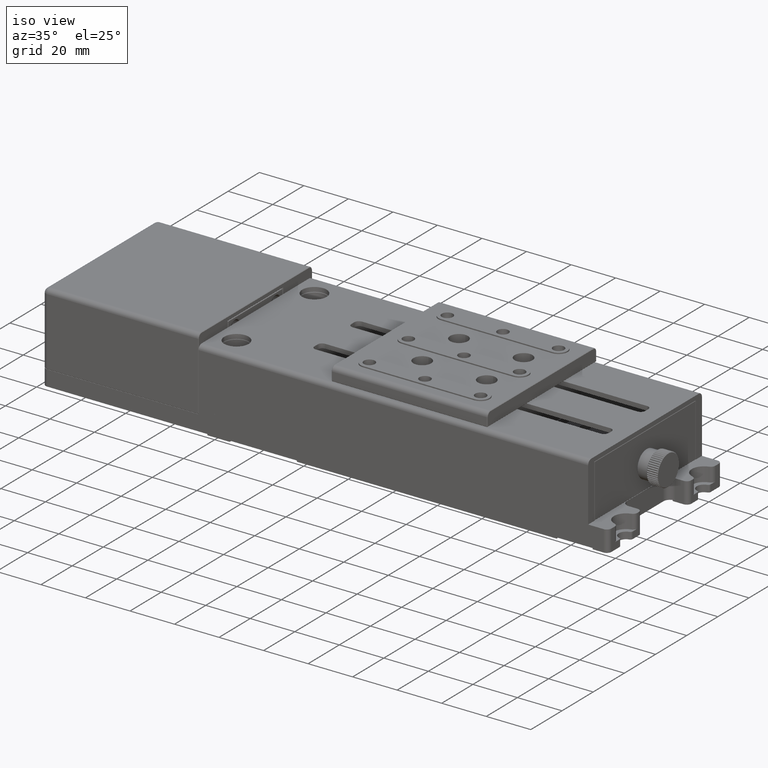
[diagram: clean part render]
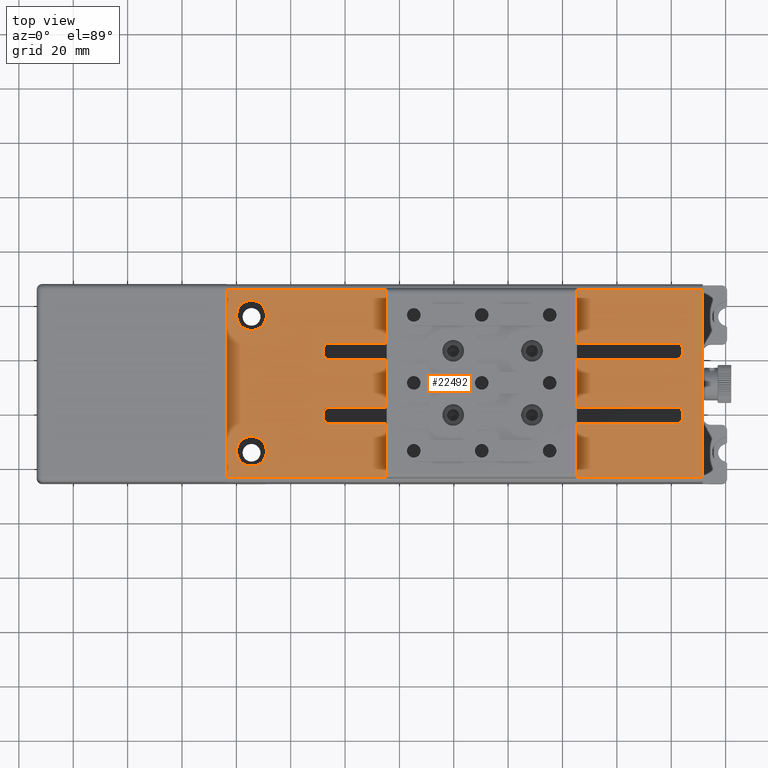
[diagram: tour spotlight — one face highlighted and labeled with its STEP entity id]
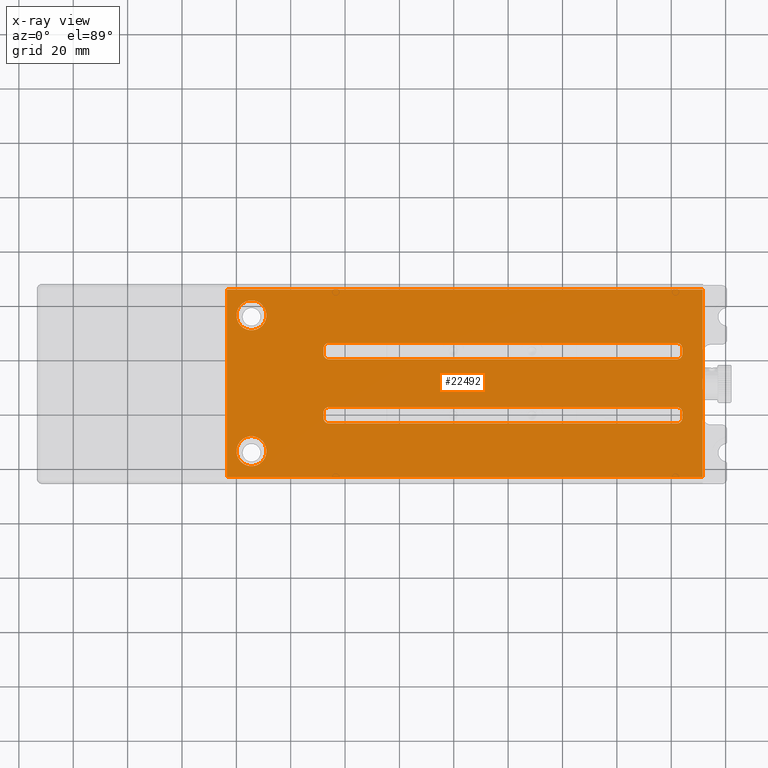
[diagram: x-ray of the same camera — body ghosted, this tour face saturated]
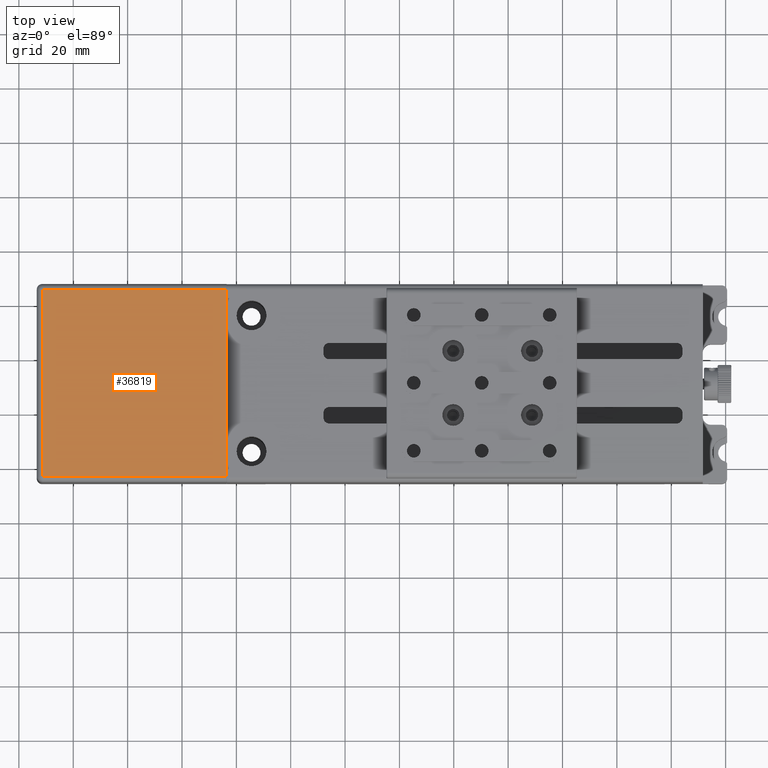
[diagram: tour spotlight — one face highlighted and labeled with its STEP entity id]
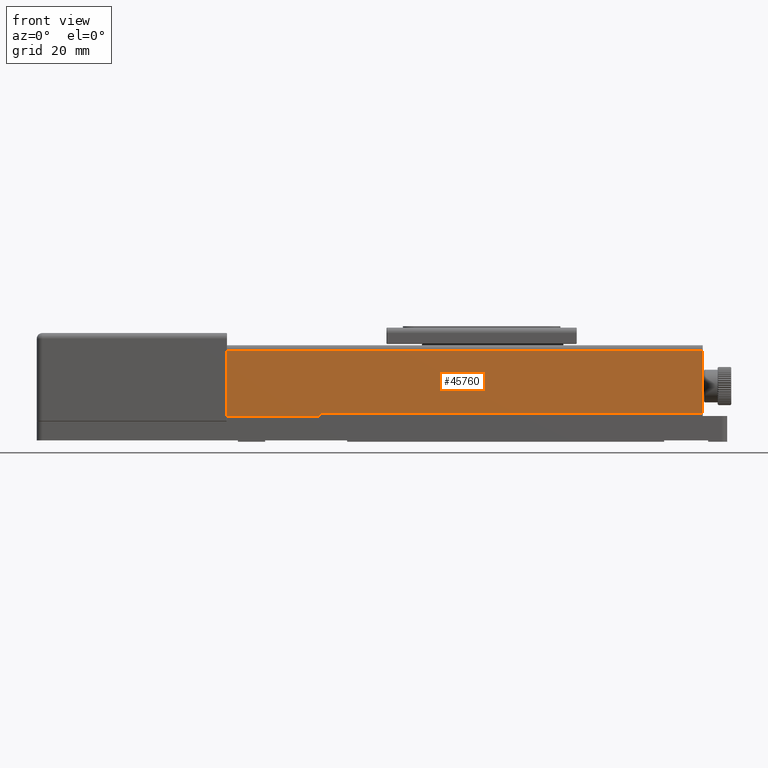
[diagram: tour spotlight — one face highlighted and labeled with its STEP entity id]
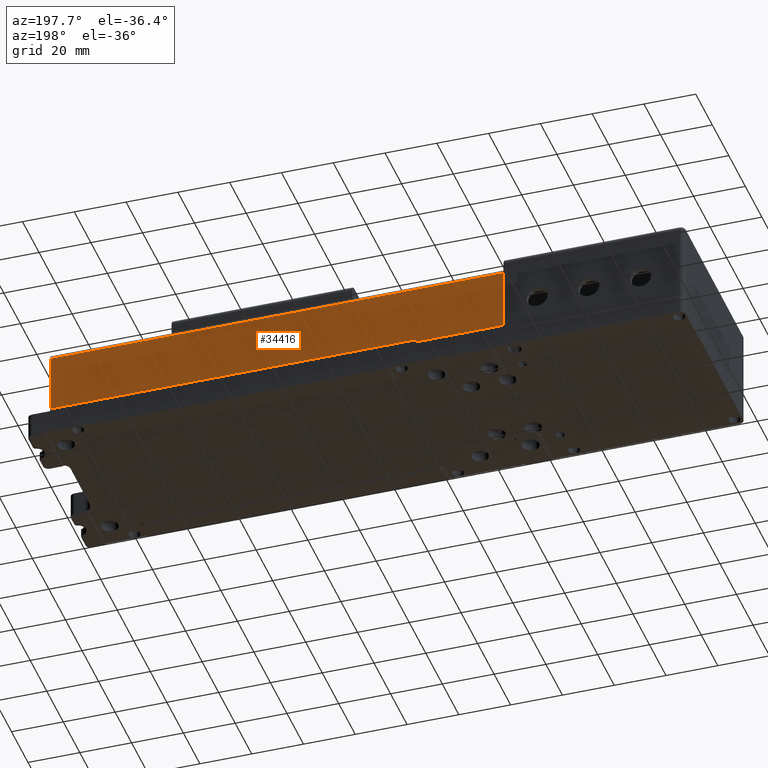
[diagram: tour spotlight — one face highlighted and labeled with its STEP entity id]
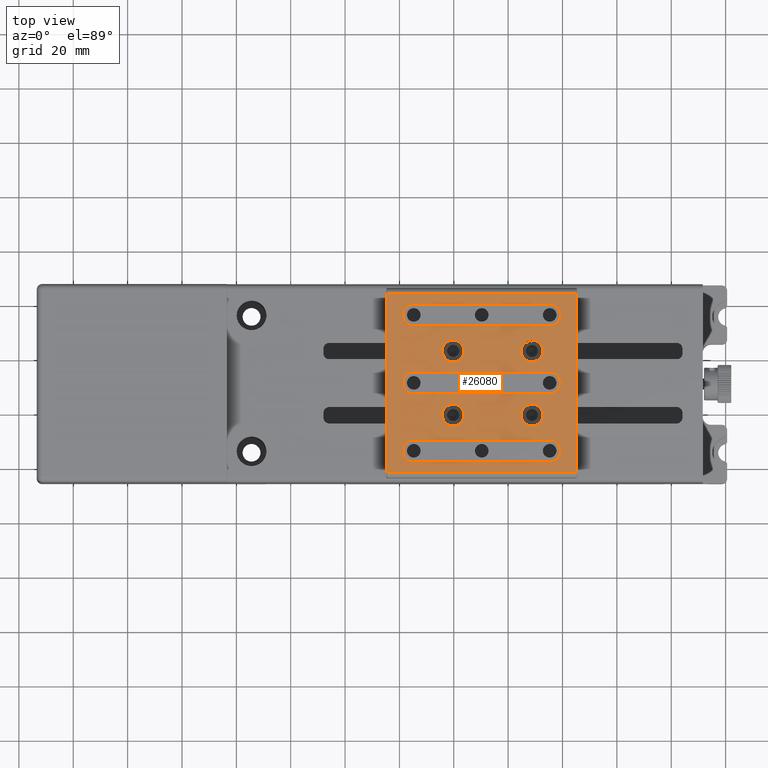
[diagram: tour spotlight — one face highlighted and labeled with its STEP entity id]
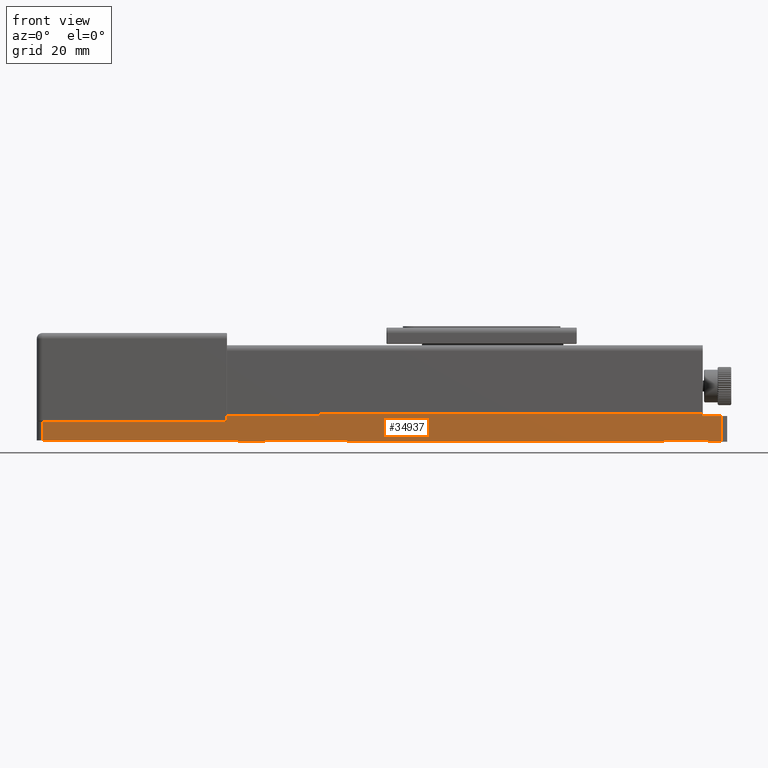
[diagram: tour spotlight — one face highlighted and labeled with its STEP entity id]
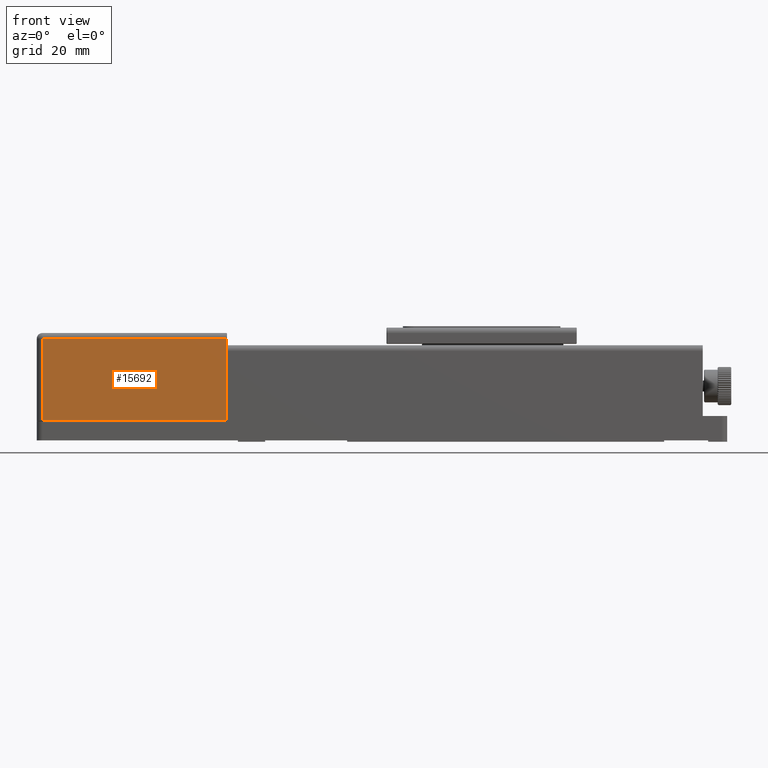
[diagram: tour spotlight — one face highlighted and labeled with its STEP entity id]
A machine part: a face-by-face anatomy tour. The part has 2313 B-rep faces; the first image is the clean iso view, then the 7 largest visible faces are spotlighted one at a time (largest first), each with its STEP entity span.

Face 1 — top view, entity #22492. An x-ray twin of the same camera follows (body ghosted, this face saturated) — the face is partly hidden behind the body. In plain terms, the highlighted planar face has unit normal (0, 0, -1).
Definition (entity closure, byte-faithful):
#330 = CIRCLE ( 'NONE', #14767, 5.500000000000005329 ) ;
#639 = VERTEX_POINT ( 'NONE', #30970 ) ;
#992 = FACE_BOUND ( 'NONE', #18426, .T. ) ;
#1371 = CARTESIAN_POINT ( 'NONE',  ( 91.57474001859759483, -43.46919745025279980, 30.00000000000000000 ) ) ;
#1963 = DIRECTION ( 'NONE',  ( -1.000000000000000000, 2.168404344971006896E-16, 0.000000000000000000 ) ) ;
#2164 = EDGE_CURVE ( 'NONE', #56288, #31745, #48360, .T. ) ;
#2575 = DIRECTION ( 'NONE',  ( -1.000000000000000000, 1.169098488052247876E-16, 0.000000000000000000 ) ) ;
#3082 = VERTEX_POINT ( 'NONE', #3318 ) ;
#3161 = ORIENTED_EDGE ( 'NONE', *, *, #56345, .F. ) ;
#3318 = CARTESIAN_POINT ( 'NONE',  ( 82.07474001859769430, -17.76919745025280051, 30.00000000000000000 ) ) ;
#3456 = DIRECTION ( 'NONE',  ( -1.110223024625155924E-16, -1.000000000000000000, 0.000000000000000000 ) ) ;
#4019 = LINE ( 'NONE', #9240, #28297 ) ;
#4138 = ORIENTED_EDGE ( 'NONE', *, *, #9456, .T. ) ;
#4188 = EDGE_LOOP ( 'NONE', ( #67688, #29185, #3161, #41574 ) ) ;
#4339 = VECTOR ( 'NONE', #3456, 1000.000000000000000 ) ;
#4471 = VERTEX_POINT ( 'NONE', #56346 ) ;
#4508 = DIRECTION ( 'NONE',  ( 1.000000000000000000, 0.000000000000000000, 0.000000000000000000 ) ) ;
#4823 = ORIENTED_EDGE ( 'NONE', *, *, #39870, .F. ) ;
#5096 = VECTOR ( 'NONE', #38648, 1000.000000000000000 ) ;
#5485 = EDGE_CURVE ( 'NONE', #39274, #26899, #53823, .T. ) ;
#5807 = VERTEX_POINT ( 'NONE', #26141 ) ;
#5845 = EDGE_CURVE ( 'NONE', #19783, #61576, #58288, .T. ) ;
#6032 = VECTOR ( 'NONE', #40745, 1000.000000000000000 ) ;
#6382 = VERTEX_POINT ( 'NONE', #48915 ) ;
#6396 = CIRCLE ( 'NONE', #45192, 2.000000000000001776 ) ;
#6403 = EDGE_CURVE ( 'NONE', #44530, #4471, #33648, .T. ) ;
#6417 = LINE ( 'NONE', #33143, #56610 ) ;
#6533 = CARTESIAN_POINT ( 'NONE',  ( -74.42525998140239096, 16.03080254974724994, 30.00000000000000000 ) ) ;
#6975 = DIRECTION ( 'NONE',  ( -1.000000000000000000, 2.168404344971006896E-16, 0.000000000000000000 ) ) ;
#7548 = DIRECTION ( 'NONE',  ( -1.000000000000000000, 0.000000000000000000, 0.000000000000000000 ) ) ;
#7603 = AXIS2_PLACEMENT_3D ( 'NONE', #53744, #31918, #58619 ) ;
#7691 = VERTEX_POINT ( 'NONE', #58289 ) ;
#8015 = VERTEX_POINT ( 'NONE', #62032 ) ;
#8448 = EDGE_CURVE ( 'NONE', #8015, #66848, #66754, .T. ) ;
#9240 = CARTESIAN_POINT ( 'NONE',  ( 84.07474001859770851, -0.1691974502527995028, 30.00000000000000000 ) ) ;
#9456 = EDGE_CURVE ( 'NONE', #5807, #6382, #67719, .T. ) ;
#10108 = VECTOR ( 'NONE', #33102, 1000.000000000000000 ) ;
#10593 = AXIS2_PLACEMENT_3D ( 'NONE', #64110, #26976, #54374 ) ;
#10854 = ORIENTED_EDGE ( 'NONE', *, *, #20792, .T. ) ;
#11081 = CIRCLE ( 'NONE', #55409, 2.000000000000001776 ) ;
#11403 = CARTESIAN_POINT ( 'NONE',  ( -45.92525998140230570, 1.830802549747215124, 30.00000000000000000 ) ) ;
#11421 = VERTEX_POINT ( 'NONE', #14254 ) ;
#11731 = CIRCLE ( 'NONE', #18368, 5.500000000000005329 ) ;
#11745 = DIRECTION ( 'NONE',  ( 0.000000000000000000, 0.000000000000000000, 1.000000000000000000 ) ) ;
#11927 = AXIS2_PLACEMENT_3D ( 'NONE', #32396, #26519, #47661 ) ;
#13203 = CARTESIAN_POINT ( 'NONE',  ( -47.92525998140230570, -0.1691974502527860136, 30.00000000000000000 ) ) ;
#14179 = VERTEX_POINT ( 'NONE', #25817 ) ;
#14254 = CARTESIAN_POINT ( 'NONE',  ( -47.92525998140230570, 1.830802549747215124, 30.00000000000000000 ) ) ;
#14767 = AXIS2_PLACEMENT_3D ( 'NONE', #6533, #11745, #32913 ) ;
#15095 = ORIENTED_EDGE ( 'NONE', *, *, #43003, .T. ) ;
#15262 = DIRECTION ( 'NONE',  ( 1.000000000000000000, 0.000000000000000000, 0.000000000000000000 ) ) ;
#15624 = PLANE ( 'NONE',  #7603 ) ;
#16404 = CARTESIAN_POINT ( 'NONE',  ( -47.92525998140230570, -19.76919745025280406, 30.00000000000000000 ) ) ;
#17426 = CARTESIAN_POINT ( 'NONE',  ( -79.92525998140240517, 16.03080254974724994, 30.00000000000000000 ) ) ;
#17500 = CARTESIAN_POINT ( 'NONE',  ( 84.07474001859770851, -0.1691974502527995028, 30.00000000000000000 ) ) ;
#17772 = CIRCLE ( 'NONE', #58727, 5.500000000000005329 ) ;
#18368 = AXIS2_PLACEMENT_3D ( 'NONE', #25000, #30896, #4508 ) ;
#18426 = EDGE_LOOP ( 'NONE', ( #46575, #30313 ) ) ;
#18981 = DIRECTION ( 'NONE',  ( -3.353798720221824995E-17, 1.000000000000000000, 0.000000000000000000 ) ) ;
#19156 = CARTESIAN_POINT ( 'NONE',  ( -74.42525998140239096, 16.03080254974724994, 30.00000000000000000 ) ) ;
#19606 = ORIENTED_EDGE ( 'NONE', *, *, #5845, .T. ) ;
#19783 = VERTEX_POINT ( 'NONE', #67055 ) ;
#19941 = LINE ( 'NONE', #29671, #6032 ) ;
#20792 = EDGE_CURVE ( 'NONE', #44361, #7691, #58425, .T. ) ;
#22013 = ORIENTED_EDGE ( 'NONE', *, *, #45916, .F. ) ;
#22261 = DIRECTION ( 'NONE',  ( 0.000000000000000000, 0.000000000000000000, -1.000000000000000000 ) ) ;
#22492 = ADVANCED_FACE ( 'NONE', ( #68017, #37105, #47855, #992, #38123 ), #15624, .F. ) ;
#23377 = CARTESIAN_POINT ( 'NONE',  ( 84.07474001859770851, -23.76919745025280051, 30.00000000000000000 ) ) ;
#23378 = AXIS2_PLACEMENT_3D ( 'NONE', #33205, #49489, #1963 ) ;
#24102 = CIRCLE ( 'NONE', #52897, 5.500000000000005329 ) ;
#24407 = EDGE_CURVE ( 'NONE', #47893, #29905, #330, .T. ) ;
#24792 = ORIENTED_EDGE ( 'NONE', *, *, #41115, .F. ) ;
#25000 = CARTESIAN_POINT ( 'NONE',  ( -74.42525998140239096, -33.96919745025275006, 30.00000000000000000 ) ) ;
#25090 = LINE ( 'NONE', #57337, #60827 ) ;
#25610 = EDGE_CURVE ( 'NONE', #46324, #31745, #29323, .T. ) ;
#25675 = DIRECTION ( 'NONE',  ( 0.000000000000000000, 0.000000000000000000, 1.000000000000000000 ) ) ;
#25777 = DIRECTION ( 'NONE',  ( -1.000000000000000000, 2.220446049250315053E-16, 0.000000000000000000 ) ) ;
#25817 = CARTESIAN_POINT ( 'NONE',  ( 84.07474001859770851, -19.76919745025280406, 30.00000000000000000 ) ) ;
#26141 = CARTESIAN_POINT ( 'NONE',  ( -47.92525998140230570, 3.830802549747220009, 30.00000000000000000 ) ) ;
#26322 = CARTESIAN_POINT ( 'NONE',  ( -47.92525998140230570, -23.76919745025280051, 30.00000000000000000 ) ) ;
#26445 = EDGE_LOOP ( 'NONE', ( #49291, #58625 ) ) ;
#26519 = DIRECTION ( 'NONE',  ( 0.000000000000000000, 0.000000000000000000, -1.000000000000000000 ) ) ;
#26899 = VERTEX_POINT ( 'NONE', #38635 ) ;
#26976 = DIRECTION ( 'NONE',  ( 0.000000000000000000, 0.000000000000000000, -1.000000000000000000 ) ) ;
#27199 = LINE ( 'NONE', #23377, #10108 ) ;
#27674 = CARTESIAN_POINT ( 'NONE',  ( 82.07474001859769430, -19.76919745025280406, 30.00000000000000000 ) ) ;
#27724 = EDGE_CURVE ( 'NONE', #59582, #49720, #11731, .T. ) ;
#27856 = ORIENTED_EDGE ( 'NONE', *, *, #35106, .F. ) ;
#28297 = VECTOR ( 'NONE', #18981, 1000.000000000000000 ) ;
#28363 = AXIS2_PLACEMENT_3D ( 'NONE', #36887, #47630, #52496 ) ;
#29166 = CARTESIAN_POINT ( 'NONE',  ( 82.07474001859769430, 1.830802549747205132, 30.00000000000000000 ) ) ;
#29185 = ORIENTED_EDGE ( 'NONE', *, *, #6403, .T. ) ;
#29323 = CIRCLE ( 'NONE', #48120, 2.000000000000001776 ) ;
#29505 = VECTOR ( 'NONE', #67632, 1000.000000000000000 ) ;
#29671 = CARTESIAN_POINT ( 'NONE',  ( 84.07474001859770851, 5.830802549747209795, 30.00000000000000000 ) ) ;
#29806 = ORIENTED_EDGE ( 'NONE', *, *, #55060, .T. ) ;
#29905 = VERTEX_POINT ( 'NONE', #17426 ) ;
#30293 = DIRECTION ( 'NONE',  ( 1.110223024625155924E-16, 1.000000000000000000, 0.000000000000000000 ) ) ;
#30313 = ORIENTED_EDGE ( 'NONE', *, *, #62283, .F. ) ;
#30359 = CARTESIAN_POINT ( 'NONE',  ( 84.07474001859770851, 1.830802549747200025, 30.00000000000000000 ) ) ;
#30533 = CARTESIAN_POINT ( 'NONE',  ( -74.42525998140239096, -33.96919745025275006, 30.00000000000000000 ) ) ;
#30896 = DIRECTION ( 'NONE',  ( 0.000000000000000000, 0.000000000000000000, 1.000000000000000000 ) ) ;
#30970 = CARTESIAN_POINT ( 'NONE',  ( 84.07474001859770851, 3.830802549747204910, 30.00000000000000000 ) ) ;
#31671 = CARTESIAN_POINT ( 'NONE',  ( -83.42525998140240517, 25.53080254974725349, 30.00000000000000000 ) ) ;
#31711 = CIRCLE ( 'NONE', #40575, 2.000000000000001776 ) ;
#31745 = VERTEX_POINT ( 'NONE', #59819 ) ;
#31918 = DIRECTION ( 'NONE',  ( 0.000000000000000000, 0.000000000000000000, -1.000000000000000000 ) ) ;
#32396 = CARTESIAN_POINT ( 'NONE',  ( -45.92525998140230570, -21.76919745025279695, 30.00000000000000000 ) ) ;
#32574 = EDGE_LOOP ( 'NONE', ( #55966, #38609, #4823, #44988, #49154, #15095, #22013, #4138 ) ) ;
#32613 = ORIENTED_EDGE ( 'NONE', *, *, #68590, .F. ) ;
#32913 = DIRECTION ( 'NONE',  ( 1.000000000000000000, 0.000000000000000000, 0.000000000000000000 ) ) ;
#33102 = DIRECTION ( 'NONE',  ( 1.000000000000000000, -1.169098488052247876E-16, 0.000000000000000000 ) ) ;
#33143 = CARTESIAN_POINT ( 'NONE',  ( 84.07474001859770851, -23.76919745025280051, 30.00000000000000000 ) ) ;
#33205 = CARTESIAN_POINT ( 'NONE',  ( -45.92525998140230570, 3.830802549747220009, 30.00000000000000000 ) ) ;
#33397 = DIRECTION ( 'NONE',  ( 0.000000000000000000, 0.000000000000000000, -1.000000000000000000 ) ) ;
#33648 = LINE ( 'NONE', #1371, #40657 ) ;
#33911 = DIRECTION ( 'NONE',  ( 0.000000000000000000, 0.000000000000000000, -1.000000000000000000 ) ) ;
#34112 = CARTESIAN_POINT ( 'NONE',  ( -68.92525998140229149, -33.96919745025275006, 30.00000000000000000 ) ) ;
#34356 = LINE ( 'NONE', #13203, #4339 ) ;
#34562 = EDGE_CURVE ( 'NONE', #59173, #639, #11081, .T. ) ;
#34642 = EDGE_CURVE ( 'NONE', #29905, #47893, #17772, .T. ) ;
#35106 = EDGE_CURVE ( 'NONE', #19783, #14179, #6417, .T. ) ;
#35230 = VECTOR ( 'NONE', #2575, 1000.000000000000000 ) ;
#36887 = CARTESIAN_POINT ( 'NONE',  ( 82.07474001859769430, -21.76919745025279695, 30.00000000000000000 ) ) ;
#37105 = FACE_BOUND ( 'NONE', #32574, .T. ) ;
#38123 = FACE_OUTER_BOUND ( 'NONE', #4188, .T. ) ;
#38609 = ORIENTED_EDGE ( 'NONE', *, *, #34562, .T. ) ;
#38635 = CARTESIAN_POINT ( 'NONE',  ( -45.92525998140230570, -17.76919745025280051, 30.00000000000000000 ) ) ;
#38648 = DIRECTION ( 'NONE',  ( 1.000000000000000000, -9.062615977527318217E-17, 0.000000000000000000 ) ) ;
#38850 = DIRECTION ( 'NONE',  ( 1.000000000000000000, -2.220446049250315053E-16, 0.000000000000000000 ) ) ;
#39274 = VERTEX_POINT ( 'NONE', #16404 ) ;
#39616 = DIRECTION ( 'NONE',  ( -1.000000000000000000, 2.168404344971006896E-16, 0.000000000000000000 ) ) ;
#39870 = EDGE_CURVE ( 'NONE', #46324, #639, #4019, .T. ) ;
#40061 = CARTESIAN_POINT ( 'NONE',  ( 84.07474001859770851, -17.76919745025280051, 30.00000000000000000 ) ) ;
#40300 = DIRECTION ( 'NONE',  ( 0.000000000000000000, 0.000000000000000000, 1.000000000000000000 ) ) ;
#40575 = AXIS2_PLACEMENT_3D ( 'NONE', #27674, #33911, #7548 ) ;
#40657 = VECTOR ( 'NONE', #38850, 1000.000000000000000 ) ;
#40745 = DIRECTION ( 'NONE',  ( -1.000000000000000000, 9.062615977527318217E-17, 0.000000000000000000 ) ) ;
#41115 = EDGE_CURVE ( 'NONE', #39274, #7691, #61736, .T. ) ;
#41574 = ORIENTED_EDGE ( 'NONE', *, *, #8448, .T. ) ;
#42367 = VECTOR ( 'NONE', #66197, 1000.000000000000000 ) ;
#43003 = EDGE_CURVE ( 'NONE', #56288, #11421, #6396, .T. ) ;
#43668 = CARTESIAN_POINT ( 'NONE',  ( -45.92525998140230570, -23.76919745025280051, 30.00000000000000000 ) ) ;
#44361 = VERTEX_POINT ( 'NONE', #43668 ) ;
#44530 = VERTEX_POINT ( 'NONE', #50585 ) ;
#44988 = ORIENTED_EDGE ( 'NONE', *, *, #25610, .T. ) ;
#45191 = EDGE_CURVE ( 'NONE', #44361, #61576, #27199, .T. ) ;
#45192 = AXIS2_PLACEMENT_3D ( 'NONE', #11403, #57916, #53042 ) ;
#45916 = EDGE_CURVE ( 'NONE', #5807, #11421, #34356, .T. ) ;
#46324 = VERTEX_POINT ( 'NONE', #30359 ) ;
#46488 = ORIENTED_EDGE ( 'NONE', *, *, #5485, .T. ) ;
#46517 = DIRECTION ( 'NONE',  ( 1.000000000000000000, 0.000000000000000000, 0.000000000000000000 ) ) ;
#46575 = ORIENTED_EDGE ( 'NONE', *, *, #27724, .F. ) ;
#47630 = DIRECTION ( 'NONE',  ( 0.000000000000000000, 0.000000000000000000, -1.000000000000000000 ) ) ;
#47661 = DIRECTION ( 'NONE',  ( -1.000000000000000000, 0.000000000000000000, 0.000000000000000000 ) ) ;
#47855 = FACE_BOUND ( 'NONE', #26445, .T. ) ;
#47893 = VERTEX_POINT ( 'NONE', #66482 ) ;
#48120 = AXIS2_PLACEMENT_3D ( 'NONE', #29166, #22261, #6975 ) ;
#48360 = LINE ( 'NONE', #17500, #5096 ) ;
#48399 = DIRECTION ( 'NONE',  ( 2.555825921272494964E-16, 1.000000000000000000, 0.000000000000000000 ) ) ;
#48842 = CARTESIAN_POINT ( 'NONE',  ( -45.92525998140230570, -0.1691974502527860136, 30.00000000000000000 ) ) ;
#48915 = CARTESIAN_POINT ( 'NONE',  ( -45.92525998140230570, 5.830802549747220453, 30.00000000000000000 ) ) ;
#49154 = ORIENTED_EDGE ( 'NONE', *, *, #2164, .F. ) ;
#49291 = ORIENTED_EDGE ( 'NONE', *, *, #24407, .F. ) ;
#49489 = DIRECTION ( 'NONE',  ( 0.000000000000000000, 0.000000000000000000, -1.000000000000000000 ) ) ;
#49720 = VERTEX_POINT ( 'NONE', #54804 ) ;
#50015 = CARTESIAN_POINT ( 'NONE',  ( 82.07474001859769430, 3.830802549747209795, 30.00000000000000000 ) ) ;
#50585 = CARTESIAN_POINT ( 'NONE',  ( -83.42525998140240517, -43.46919745025275006, 30.00000000000000000 ) ) ;
#52496 = DIRECTION ( 'NONE',  ( -1.000000000000000000, 0.000000000000000000, 0.000000000000000000 ) ) ;
#52897 = AXIS2_PLACEMENT_3D ( 'NONE', #30533, #25675, #15262 ) ;
#53042 = DIRECTION ( 'NONE',  ( -1.000000000000000000, 2.168404344971006896E-16, 0.000000000000000000 ) ) ;
#53744 = CARTESIAN_POINT ( 'NONE',  ( 91.57474001859770851, 27.53080254974720020, 30.00000000000000000 ) ) ;
#53823 = CIRCLE ( 'NONE', #10593, 2.000000000000001776 ) ;
#54374 = DIRECTION ( 'NONE',  ( -1.000000000000000000, 0.000000000000000000, 0.000000000000000000 ) ) ;
#54804 = CARTESIAN_POINT ( 'NONE',  ( -79.92525998140240517, -33.96919745025275006, 30.00000000000000000 ) ) ;
#55060 = EDGE_CURVE ( 'NONE', #3082, #14179, #31711, .T. ) ;
#55409 = AXIS2_PLACEMENT_3D ( 'NONE', #50015, #33397, #39616 ) ;
#55966 = ORIENTED_EDGE ( 'NONE', *, *, #58268, .F. ) ;
#56288 = VERTEX_POINT ( 'NONE', #48842 ) ;
#56345 = EDGE_CURVE ( 'NONE', #8015, #4471, #67563, .T. ) ;
#56346 = CARTESIAN_POINT ( 'NONE',  ( 91.57474001859759483, -43.46919745025279980, 30.00000000000000000 ) ) ;
#56610 = VECTOR ( 'NONE', #48399, 1000.000000000000000 ) ;
#56998 = CARTESIAN_POINT ( 'NONE',  ( 91.57474001859770851, 25.53080254974720020, 30.00000000000000000 ) ) ;
#57337 = CARTESIAN_POINT ( 'NONE',  ( -83.42525998140240517, 27.53080254974724994, 30.00000000000000000 ) ) ;
#57545 = VECTOR ( 'NONE', #25777, 1000.000000000000000 ) ;
#57916 = DIRECTION ( 'NONE',  ( 0.000000000000000000, 0.000000000000000000, -1.000000000000000000 ) ) ;
#58268 = EDGE_CURVE ( 'NONE', #59173, #6382, #19941, .T. ) ;
#58288 = CIRCLE ( 'NONE', #28363, 2.000000000000001776 ) ;
#58289 = CARTESIAN_POINT ( 'NONE',  ( -47.92525998140230570, -21.76919745025279695, 30.00000000000000000 ) ) ;
#58425 = CIRCLE ( 'NONE', #11927, 2.000000000000001776 ) ;
#58619 = DIRECTION ( 'NONE',  ( 0.000000000000000000, -1.000000000000000000, 0.000000000000000000 ) ) ;
#58625 = ORIENTED_EDGE ( 'NONE', *, *, #34642, .F. ) ;
#58727 = AXIS2_PLACEMENT_3D ( 'NONE', #19156, #40300, #46517 ) ;
#59173 = VERTEX_POINT ( 'NONE', #60200 ) ;
#59582 = VERTEX_POINT ( 'NONE', #34112 ) ;
#59819 = CARTESIAN_POINT ( 'NONE',  ( 82.07474001859769430, -0.1691974502527960056, 30.00000000000000000 ) ) ;
#60200 = CARTESIAN_POINT ( 'NONE',  ( 82.07474001859769430, 5.830802549747209795, 30.00000000000000000 ) ) ;
#60827 = VECTOR ( 'NONE', #30293, 1000.000000000000000 ) ;
#60880 = LINE ( 'NONE', #40061, #35230 ) ;
#61576 = VERTEX_POINT ( 'NONE', #67907 ) ;
#61736 = LINE ( 'NONE', #26322, #29505 ) ;
#62000 = CARTESIAN_POINT ( 'NONE',  ( 91.57474001859770851, 27.53080254974720020, 30.00000000000000000 ) ) ;
#62032 = CARTESIAN_POINT ( 'NONE',  ( 91.57474001859770851, 25.53080254974720020, 30.00000000000000000 ) ) ;
#62283 = EDGE_CURVE ( 'NONE', #49720, #59582, #24102, .T. ) ;
#63462 = EDGE_CURVE ( 'NONE', #44530, #66848, #25090, .T. ) ;
#64110 = CARTESIAN_POINT ( 'NONE',  ( -45.92525998140230570, -19.76919745025280406, 30.00000000000000000 ) ) ;
#66197 = DIRECTION ( 'NONE',  ( -2.334869823772509994E-16, -1.000000000000000000, 0.000000000000000000 ) ) ;
#66482 = CARTESIAN_POINT ( 'NONE',  ( -68.92525998140229149, 16.03080254974724994, 30.00000000000000000 ) ) ;
#66754 = LINE ( 'NONE', #56998, #57545 ) ;
#66848 = VERTEX_POINT ( 'NONE', #31671 ) ;
#67055 = CARTESIAN_POINT ( 'NONE',  ( 84.07474001859770851, -21.76919745025279695, 30.00000000000000000 ) ) ;
#67563 = LINE ( 'NONE', #62000, #42367 ) ;
#67632 = DIRECTION ( 'NONE',  ( -1.110223024625155924E-16, -1.000000000000000000, 0.000000000000000000 ) ) ;
#67688 = ORIENTED_EDGE ( 'NONE', *, *, #63462, .F. ) ;
#67719 = CIRCLE ( 'NONE', #23378, 2.000000000000001776 ) ;
#67907 = CARTESIAN_POINT ( 'NONE',  ( 82.07474001859769430, -23.76919745025280051, 30.00000000000000000 ) ) ;
#68017 = FACE_BOUND ( 'NONE', #68338, .T. ) ;
#68212 = ORIENTED_EDGE ( 'NONE', *, *, #45191, .F. ) ;
#68338 = EDGE_LOOP ( 'NONE', ( #32613, #29806, #27856, #19606, #68212, #10854, #24792, #46488 ) ) ;
#68590 = EDGE_CURVE ( 'NONE', #3082, #26899, #60880, .T. ) ;

Face 2 — top view, entity #36819. In plain terms, the highlighted planar face has unit normal (0, 0, -1).
Definition (entity closure, byte-faithful):
#1306 = CARTESIAN_POINT ( 'NONE',  ( -151.4252599814024904, -45.46919745025279980, 34.50000000000000000 ) ) ;
#4978 = LINE ( 'NONE', #26158, #14975 ) ;
#5989 = DIRECTION ( 'NONE',  ( 0.000000000000000000, 0.000000000000000000, -1.000000000000000000 ) ) ;
#6349 = FACE_OUTER_BOUND ( 'NONE', #11153, .T. ) ;
#6918 = AXIS2_PLACEMENT_3D ( 'NONE', #58068, #5989, #31705 ) ;
#11153 = EDGE_LOOP ( 'NONE', ( #52039, #24619, #46108, #26987 ) ) ;
#11355 = CARTESIAN_POINT ( 'NONE',  ( -83.62525998140229433, -43.46919745025279980, 34.50000000000000000 ) ) ;
#14975 = VECTOR ( 'NONE', #54145, 1000.000000000000000 ) ;
#17971 = LINE ( 'NONE', #1306, #33501 ) ;
#23448 = LINE ( 'NONE', #45633, #42787 ) ;
#24619 = ORIENTED_EDGE ( 'NONE', *, *, #26712, .T. ) ;
#26158 = CARTESIAN_POINT ( 'NONE',  ( -83.42525998140230570, 25.53080254974720020, 34.50000000000000000 ) ) ;
#26712 = EDGE_CURVE ( 'NONE', #33007, #63881, #23448, .T. ) ;
#26987 = ORIENTED_EDGE ( 'NONE', *, *, #56327, .T. ) ;
#31705 = DIRECTION ( 'NONE',  ( 0.000000000000000000, -1.000000000000000000, 0.000000000000000000 ) ) ;
#33007 = VERTEX_POINT ( 'NONE', #11355 ) ;
#33501 = VECTOR ( 'NONE', #64820, 1000.000000000000000 ) ;
#34111 = LINE ( 'NONE', #51420, #50953 ) ;
#36819 = ADVANCED_FACE ( 'NONE', ( #6349 ), #47982, .F. ) ;
#42787 = VECTOR ( 'NONE', #61245, 1000.000000000000000 ) ;
#45633 = CARTESIAN_POINT ( 'NONE',  ( -83.62525998140229433, -45.46919745025279980, 34.50000000000000000 ) ) ;
#46108 = ORIENTED_EDGE ( 'NONE', *, *, #58419, .T. ) ;
#46702 = EDGE_CURVE ( 'NONE', #51623, #33007, #34111, .T. ) ;
#47982 = PLANE ( 'NONE',  #6918 ) ;
#50953 = VECTOR ( 'NONE', #56298, 1000.000000000000000 ) ;
#51420 = CARTESIAN_POINT ( 'NONE',  ( -83.42525998140240517, -43.46919745025279980, 34.50000000000000000 ) ) ;
#51623 = VERTEX_POINT ( 'NONE', #65084 ) ;
#52039 = ORIENTED_EDGE ( 'NONE', *, *, #46702, .T. ) ;
#54145 = DIRECTION ( 'NONE',  ( -1.000000000000000000, 2.220446049250315053E-16, 0.000000000000000000 ) ) ;
#56298 = DIRECTION ( 'NONE',  ( 1.000000000000000000, -3.445092848397665055E-16, 0.000000000000000000 ) ) ;
#56327 = EDGE_CURVE ( 'NONE', #65218, #51623, #17971, .T. ) ;
#57515 = CARTESIAN_POINT ( 'NONE',  ( -83.62525998140229433, 25.53080254974720020, 34.50000000000000000 ) ) ;
#58068 = CARTESIAN_POINT ( 'NONE',  ( -83.42525998140240517, -45.46919745025279980, 34.50000000000000000 ) ) ;
#58419 = EDGE_CURVE ( 'NONE', #63881, #65218, #4978, .T. ) ;
#61245 = DIRECTION ( 'NONE',  ( 2.775557561562890365E-16, 1.000000000000000000, 0.000000000000000000 ) ) ;
#62985 = CARTESIAN_POINT ( 'NONE',  ( -151.4252599814024904, 25.53080254974725349, 34.50000000000000000 ) ) ;
#63881 = VERTEX_POINT ( 'NONE', #57515 ) ;
#64820 = DIRECTION ( 'NONE',  ( -2.775557561562890365E-16, -1.000000000000000000, 0.000000000000000000 ) ) ;
#65084 = CARTESIAN_POINT ( 'NONE',  ( -151.4252599814024904, -43.46919745025275006, 34.50000000000000000 ) ) ;
#65218 = VERTEX_POINT ( 'NONE', #62985 ) ;

Face 3 — front view, entity #45760. In plain terms, the highlighted planar face has unit normal (0, 1, 0).
Definition (entity closure, byte-faithful):
#1043 = DIRECTION ( 'NONE',  ( 1.000000000000000000, -1.110223024625155924E-16, 0.000000000000000000 ) ) ;
#2677 = VERTEX_POINT ( 'NONE', #14848 ) ;
#5910 = DIRECTION ( 'NONE',  ( 1.110223024625155924E-16, 1.000000000000000000, 0.000000000000000000 ) ) ;
#6611 = FACE_OUTER_BOUND ( 'NONE', #32474, .T. ) ;
#10160 = VECTOR ( 'NONE', #36902, 1000.000000000000000 ) ;
#13158 = ORIENTED_EDGE ( 'NONE', *, *, #56318, .F. ) ;
#14195 = EDGE_CURVE ( 'NONE', #31085, #25713, #62255, .T. ) ;
#14848 = CARTESIAN_POINT ( 'NONE',  ( -83.42525998140240517, -45.46919745025279980, 28.00000000000000000 ) ) ;
#16866 = VECTOR ( 'NONE', #33581, 1000.000000000000000 ) ;
#21594 = LINE ( 'NONE', #32668, #66371 ) ;
#22098 = EDGE_CURVE ( 'NONE', #56760, #2677, #21594, .T. ) ;
#22291 = ORIENTED_EDGE ( 'NONE', *, *, #14195, .F. ) ;
#22414 = VECTOR ( 'NONE', #49169, 1000.000000000000000 ) ;
#23176 = CARTESIAN_POINT ( 'NONE',  ( 91.57474001859759483, -45.46919745025279980, 5.000000000000000000 ) ) ;
#25713 = VERTEX_POINT ( 'NONE', #45120 ) ;
#28873 = VECTOR ( 'NONE', #31397, 1000.000000000000000 ) ;
#28884 = LINE ( 'NONE', #44834, #45784 ) ;
#30732 = CARTESIAN_POINT ( 'NONE',  ( 91.57474001859759483, -45.46919745025279980, 5.000000000000000000 ) ) ;
#30743 = ORIENTED_EDGE ( 'NONE', *, *, #50103, .F. ) ;
#31085 = VERTEX_POINT ( 'NONE', #40956 ) ;
#31397 = DIRECTION ( 'NONE',  ( 0.000000000000000000, 0.000000000000000000, 1.000000000000000000 ) ) ;
#32474 = EDGE_LOOP ( 'NONE', ( #22291, #52142, #13158, #50708, #40021, #30743 ) ) ;
#32668 = CARTESIAN_POINT ( 'NONE',  ( 91.57474001859759483, -45.46919745025279980, 28.00000000000000000 ) ) ;
#33581 = DIRECTION ( 'NONE',  ( -1.000000000000000000, 2.220446049250315053E-16, 0.000000000000000000 ) ) ;
#35354 = AXIS2_PLACEMENT_3D ( 'NONE', #49263, #5910, #1043 ) ;
#35534 = VERTEX_POINT ( 'NONE', #64291 ) ;
#36902 = DIRECTION ( 'NONE',  ( -1.000000000000000000, 2.220446049250315053E-16, 0.000000000000000000 ) ) ;
#38080 = VERTEX_POINT ( 'NONE', #50835 ) ;
#39732 = CARTESIAN_POINT ( 'NONE',  ( 91.57474001859759483, -45.46919745025279980, 28.00000000000000000 ) ) ;
#40021 = ORIENTED_EDGE ( 'NONE', *, *, #22098, .T. ) ;
#40956 = CARTESIAN_POINT ( 'NONE',  ( -49.42525998140229859, -45.46919745025279980, 4.000000000000000000 ) ) ;
#41772 = CARTESIAN_POINT ( 'NONE',  ( 91.57474001859759483, -45.46919745025279980, 4.000000000000000000 ) ) ;
#43649 = LINE ( 'NONE', #23176, #16866 ) ;
#44834 = CARTESIAN_POINT ( 'NONE',  ( -49.42525998140229859, -45.46919745025279980, 2.000000000000000000 ) ) ;
#45120 = CARTESIAN_POINT ( 'NONE',  ( -83.42525998140240517, -45.46919745025279980, 4.000000000000000000 ) ) ;
#45760 = ADVANCED_FACE ( 'NONE', ( #6611 ), #47902, .F. ) ;
#45784 = VECTOR ( 'NONE', #66016, 1000.000000000000000 ) ;
#47902 = PLANE ( 'NONE',  #35354 ) ;
#48969 = DIRECTION ( 'NONE',  ( -1.000000000000000000, 2.220446049250315053E-16, 0.000000000000000000 ) ) ;
#49169 = DIRECTION ( 'NONE',  ( 0.000000000000000000, 0.000000000000000000, 1.000000000000000000 ) ) ;
#49263 = CARTESIAN_POINT ( 'NONE',  ( 91.57474001859759483, -45.46919745025279980, 5.000000000000000000 ) ) ;
#50103 = EDGE_CURVE ( 'NONE', #25713, #2677, #59938, .T. ) ;
#50708 = ORIENTED_EDGE ( 'NONE', *, *, #65188, .T. ) ;
#50835 = CARTESIAN_POINT ( 'NONE',  ( -49.42525998140229859, -45.46919745025279980, 5.000000000000000000 ) ) ;
#51107 = EDGE_CURVE ( 'NONE', #31085, #38080, #28884, .T. ) ;
#52142 = ORIENTED_EDGE ( 'NONE', *, *, #51107, .T. ) ;
#56318 = EDGE_CURVE ( 'NONE', #35534, #38080, #43649, .T. ) ;
#56760 = VERTEX_POINT ( 'NONE', #39732 ) ;
#59938 = LINE ( 'NONE', #65837, #22414 ) ;
#62255 = LINE ( 'NONE', #41772, #10160 ) ;
#64291 = CARTESIAN_POINT ( 'NONE',  ( 91.57474001859759483, -45.46919745025279980, 5.000000000000000000 ) ) ;
#65188 = EDGE_CURVE ( 'NONE', #35534, #56760, #67171, .T. ) ;
#65837 = CARTESIAN_POINT ( 'NONE',  ( -83.42525998140240517, -45.46919745025279980, 5.000000000000000000 ) ) ;
#66016 = DIRECTION ( 'NONE',  ( 0.000000000000000000, 0.000000000000000000, 1.000000000000000000 ) ) ;
#66371 = VECTOR ( 'NONE', #48969, 1000.000000000000000 ) ;
#67171 = LINE ( 'NONE', #30732, #28873 ) ;

Face 4 — auxiliary view, entity #34416. In plain terms, the highlighted planar face has unit normal (-0, -1, 0).
Definition (entity closure, byte-faithful):
#1832 = DIRECTION ( 'NONE',  ( 0.000000000000000000, 0.000000000000000000, 1.000000000000000000 ) ) ;
#2289 = ORIENTED_EDGE ( 'NONE', *, *, #26564, .F. ) ;
#2461 = CARTESIAN_POINT ( 'NONE',  ( 91.57474001859770851, 27.53080254974720020, 28.00000000000000000 ) ) ;
#3492 = VECTOR ( 'NONE', #62110, 1000.000000000000000 ) ;
#4036 = CARTESIAN_POINT ( 'NONE',  ( -49.42525998140229859, 27.53080254974724994, 5.000000000000000000 ) ) ;
#4515 = CARTESIAN_POINT ( 'NONE',  ( 91.57474001859770851, 27.53080254974720020, 28.00000000000000000 ) ) ;
#6283 = CARTESIAN_POINT ( 'NONE',  ( -83.42525998140240517, 27.53080254974724994, 28.00000000000000000 ) ) ;
#6602 = LINE ( 'NONE', #22571, #62706 ) ;
#6699 = CARTESIAN_POINT ( 'NONE',  ( -49.42525998140229859, 27.53080254974724994, 2.000000000000000000 ) ) ;
#8544 = EDGE_LOOP ( 'NONE', ( #2289, #62850, #68019, #34865, #12060, #35554 ) ) ;
#12060 = ORIENTED_EDGE ( 'NONE', *, *, #46049, .F. ) ;
#14111 = DIRECTION ( 'NONE',  ( -1.000000000000000000, 1.110223024625155924E-16, 0.000000000000000000 ) ) ;
#15248 = CARTESIAN_POINT ( 'NONE',  ( 91.57474001859770851, 27.53080254974720020, 5.000000000000000000 ) ) ;
#15594 = VECTOR ( 'NONE', #60379, 1000.000000000000000 ) ;
#17373 = DIRECTION ( 'NONE',  ( 1.000000000000000000, -2.220446049250315053E-16, 0.000000000000000000 ) ) ;
#18778 = CARTESIAN_POINT ( 'NONE',  ( -83.42525998140240517, 27.53080254974724994, 5.000000000000000000 ) ) ;
#21139 = CARTESIAN_POINT ( 'NONE',  ( 91.57474001859770851, 27.53080254974720020, 5.000000000000000000 ) ) ;
#22489 = EDGE_CURVE ( 'NONE', #43707, #29991, #52043, .T. ) ;
#22571 = CARTESIAN_POINT ( 'NONE',  ( 91.57474001859770851, 27.53080254974720020, 4.000000000000000000 ) ) ;
#23191 = VERTEX_POINT ( 'NONE', #21139 ) ;
#23270 = LINE ( 'NONE', #61078, #15594 ) ;
#25689 = DIRECTION ( 'NONE',  ( 1.000000000000000000, -2.220446049250315053E-16, 0.000000000000000000 ) ) ;
#26564 = EDGE_CURVE ( 'NONE', #50941, #47762, #6602, .T. ) ;
#29991 = VERTEX_POINT ( 'NONE', #2461 ) ;
#34416 = ADVANCED_FACE ( 'NONE', ( #61634 ), #50177, .F. ) ;
#34865 = ORIENTED_EDGE ( 'NONE', *, *, #47163, .F. ) ;
#35554 = ORIENTED_EDGE ( 'NONE', *, *, #59589, .F. ) ;
#43707 = VERTEX_POINT ( 'NONE', #6283 ) ;
#44258 = VECTOR ( 'NONE', #47493, 1000.000000000000000 ) ;
#45676 = CARTESIAN_POINT ( 'NONE',  ( 91.57474001859770851, 27.53080254974720020, 5.000000000000000000 ) ) ;
#46049 = EDGE_CURVE ( 'NONE', #50251, #23191, #62777, .T. ) ;
#47163 = EDGE_CURVE ( 'NONE', #23191, #29991, #23270, .T. ) ;
#47493 = DIRECTION ( 'NONE',  ( 1.000000000000000000, -2.220446049250315053E-16, 0.000000000000000000 ) ) ;
#47762 = VERTEX_POINT ( 'NONE', #58167 ) ;
#48238 = EDGE_CURVE ( 'NONE', #50941, #43707, #55880, .T. ) ;
#48287 = VECTOR ( 'NONE', #1832, 1000.000000000000000 ) ;
#50177 = PLANE ( 'NONE',  #67922 ) ;
#50251 = VERTEX_POINT ( 'NONE', #4036 ) ;
#50941 = VERTEX_POINT ( 'NONE', #53877 ) ;
#52043 = LINE ( 'NONE', #4515, #59717 ) ;
#53877 = CARTESIAN_POINT ( 'NONE',  ( -83.42525998140240517, 27.53080254974724994, 4.000000000000000000 ) ) ;
#55880 = LINE ( 'NONE', #18778, #3492 ) ;
#58167 = CARTESIAN_POINT ( 'NONE',  ( -49.42525998140229859, 27.53080254974724994, 4.000000000000000000 ) ) ;
#59589 = EDGE_CURVE ( 'NONE', #47762, #50251, #60816, .T. ) ;
#59717 = VECTOR ( 'NONE', #25689, 1000.000000000000000 ) ;
#60379 = DIRECTION ( 'NONE',  ( 0.000000000000000000, 0.000000000000000000, 1.000000000000000000 ) ) ;
#60816 = LINE ( 'NONE', #6699, #48287 ) ;
#61078 = CARTESIAN_POINT ( 'NONE',  ( 91.57474001859770851, 27.53080254974720020, 5.000000000000000000 ) ) ;
#61289 = DIRECTION ( 'NONE',  ( -1.110223024625155924E-16, -1.000000000000000000, 0.000000000000000000 ) ) ;
#61634 = FACE_OUTER_BOUND ( 'NONE', #8544, .T. ) ;
#62110 = DIRECTION ( 'NONE',  ( 0.000000000000000000, 0.000000000000000000, 1.000000000000000000 ) ) ;
#62706 = VECTOR ( 'NONE', #17373, 1000.000000000000000 ) ;
#62777 = LINE ( 'NONE', #15248, #44258 ) ;
#62850 = ORIENTED_EDGE ( 'NONE', *, *, #48238, .T. ) ;
#67922 = AXIS2_PLACEMENT_3D ( 'NONE', #45676, #61289, #14111 ) ;
#68019 = ORIENTED_EDGE ( 'NONE', *, *, #22489, .T. ) ;

Face 5 — top view, entity #26080. In plain terms, the highlighted planar face has unit normal (-0, -0, 1).
Definition (entity closure, byte-faithful):
#103 = DIRECTION ( 'NONE',  ( 5.075305255429290705E-16, 1.000000000000000000, 1.884109751309115082E-31 ) ) ;
#300 = EDGE_CURVE ( 'NONE', #61246, #19178, #33296, .T. ) ;
#514 = VERTEX_POINT ( 'NONE', #48770 ) ;
#767 = CARTESIAN_POINT ( 'NONE',  ( 35.25787340962129690, -29.96919745025275006, 36.50000000000000000 ) ) ;
#1556 = ORIENTED_EDGE ( 'NONE', *, *, #55625, .T. ) ;
#1565 = AXIS2_PLACEMENT_3D ( 'NONE', #55698, #33849, #55002 ) ;
#1618 = CARTESIAN_POINT ( 'NONE',  ( 28.75787340962130045, -20.76919745025274722, 36.50000000000000000 ) ) ;
#2022 = VERTEX_POINT ( 'NONE', #57766 ) ;
#2501 = EDGE_CURVE ( 'NONE', #21673, #514, #49215, .T. ) ;
#2523 = DIRECTION ( 'NONE',  ( 0.000000000000000000, -1.000000000000000000, 0.000000000000000000 ) ) ;
#2620 = CARTESIAN_POINT ( 'NONE',  ( -14.74212659037869955, -29.96919745025275006, 36.50000000000000000 ) ) ;
#2850 = CARTESIAN_POINT ( 'NONE',  ( 28.75787340962130045, -20.76919745025274722, 36.50000000000000000 ) ) ;
#3831 = ORIENTED_EDGE ( 'NONE', *, *, #6738, .T. ) ;
#3896 = CARTESIAN_POINT ( 'NONE',  ( -14.74212659037868001, 16.03080254974729968, 36.50000000000000000 ) ) ;
#3997 = AXIS2_PLACEMENT_3D ( 'NONE', #43967, #33220, #21790 ) ;
#4039 = VECTOR ( 'NONE', #53143, 1000.000000000000000 ) ;
#4748 = DIRECTION ( 'NONE',  ( -5.082197683525802034E-16, -1.000000000000000000, 0.000000000000000000 ) ) ;
#4957 = DIRECTION ( 'NONE',  ( 1.000000000000000000, -5.075305255429290705E-16, 5.551115123125779621E-17 ) ) ;
#5136 = AXIS2_PLACEMENT_3D ( 'NONE', #65691, #19196, #2523 ) ;
#5144 = DIRECTION ( 'NONE',  ( -5.551115123125779621E-17, 2.821186441973490019E-32, 1.000000000000000000 ) ) ;
#5573 = EDGE_CURVE ( 'NONE', #19178, #61246, #29521, .T. ) ;
#5625 = VERTEX_POINT ( 'NONE', #24533 ) ;
#5796 = VECTOR ( 'NONE', #23166, 1000.000000000000000 ) ;
#6212 = DIRECTION ( 'NONE',  ( 1.000000000000000000, -3.687526474647839606E-16, 5.551115123125779621E-17 ) ) ;
#6642 = LINE ( 'NONE', #27807, #4039 ) ;
#6738 = EDGE_CURVE ( 'NONE', #26127, #32757, #33231, .T. ) ;
#6851 = DIRECTION ( 'NONE',  ( -5.075305255429290705E-16, -1.000000000000000000, -1.884109751309115082E-31 ) ) ;
#7118 = CARTESIAN_POINT ( 'NONE',  ( -0.2421265903786899987, 6.830802549747249763, 36.50000000000000000 ) ) ;
#7141 = FACE_BOUND ( 'NONE', #46287, .T. ) ;
#7332 = VECTOR ( 'NONE', #18003, 1000.000000000000000 ) ;
#7495 = FACE_OUTER_BOUND ( 'NONE', #41223, .T. ) ;
#7525 = CARTESIAN_POINT ( 'NONE',  ( 35.25787340962129690, -8.969197450252730519, 36.50000000000000000 ) ) ;
#8175 = FACE_BOUND ( 'NONE', #47938, .T. ) ;
#8986 = VERTEX_POINT ( 'NONE', #10764 ) ;
#9210 = DIRECTION ( 'NONE',  ( -1.000000000000000000, 5.075305255429290705E-16, -5.551115123125779621E-17 ) ) ;
#9493 = CARTESIAN_POINT ( 'NONE',  ( 35.25787340962129690, -37.96919745025275716, 36.50000000000000000 ) ) ;
#9530 = AXIS2_PLACEMENT_3D ( 'NONE', #18142, #17474, #54239 ) ;
#9896 = DIRECTION ( 'NONE',  ( -5.551115123125779621E-17, 0.000000000000000000, 1.000000000000000000 ) ) ;
#10488 = CARTESIAN_POINT ( 'NONE',  ( -14.74212659037869955, -37.96919745025275716, 36.50000000000000000 ) ) ;
#10759 = EDGE_LOOP ( 'NONE', ( #26209, #13441 ) ) ;
#10764 = CARTESIAN_POINT ( 'NONE',  ( -14.74212659037868001, 12.03080254974729968, 36.50000000000000000 ) ) ;
#12321 = AXIS2_PLACEMENT_3D ( 'NONE', #13048, #61248, #12694 ) ;
#12694 = DIRECTION ( 'NONE',  ( -8.673617379884035472E-16, -1.000000000000000000, 0.000000000000000000 ) ) ;
#13025 = LINE ( 'NONE', #51492, #31236 ) ;
#13032 = VECTOR ( 'NONE', #6851, 1000.000000000000000 ) ;
#13048 = CARTESIAN_POINT ( 'NONE',  ( 28.75787340962130045, 2.830802549747235108, 36.50000000000000000 ) ) ;
#13065 = EDGE_LOOP ( 'NONE', ( #18180, #40774 ) ) ;
#13441 = ORIENTED_EDGE ( 'NONE', *, *, #47929, .F. ) ;
#13576 = EDGE_CURVE ( 'NONE', #39105, #61843, #60026, .T. ) ;
#14104 = EDGE_CURVE ( 'NONE', #60578, #31434, #28014, .T. ) ;
#15979 = EDGE_CURVE ( 'NONE', #61843, #45735, #54524, .T. ) ;
#16197 = VERTEX_POINT ( 'NONE', #32098 ) ;
#17198 = AXIS2_PLACEMENT_3D ( 'NONE', #1618, #17948, #22814 ) ;
#17474 = DIRECTION ( 'NONE',  ( -5.551115123125779621E-17, 2.821186441973490019E-32, 1.000000000000000000 ) ) ;
#17674 = CARTESIAN_POINT ( 'NONE',  ( 35.25787340962135374, 12.03080254974726060, 36.50000000000000000 ) ) ;
#17948 = DIRECTION ( 'NONE',  ( -5.551115123125779621E-17, 4.814824860968089633E-32, 1.000000000000000000 ) ) ;
#17977 = CARTESIAN_POINT ( 'NONE',  ( 28.75787340962130045, -1.169197450252766002, 36.50000000000000000 ) ) ;
#18003 = DIRECTION ( 'NONE',  ( -1.000000000000000000, 4.034471169843205462E-16, -5.551115123125779621E-17 ) ) ;
#18100 = CIRCLE ( 'NONE', #49086, 4.000000000000000000 ) ;
#18142 = CARTESIAN_POINT ( 'NONE',  ( -0.2421265903786924967, -20.76919745025274722, 36.50000000000000000 ) ) ;
#18180 = ORIENTED_EDGE ( 'NONE', *, *, #300, .F. ) ;
#18204 = EDGE_LOOP ( 'NONE', ( #28528, #35206, #61652, #41685 ) ) ;
#18946 = PLANE ( 'NONE',  #46002 ) ;
#19027 = VERTEX_POINT ( 'NONE', #57817 ) ;
#19178 = VERTEX_POINT ( 'NONE', #7118 ) ;
#19196 = DIRECTION ( 'NONE',  ( -5.551115123125779621E-17, 0.000000000000000000, 1.000000000000000000 ) ) ;
#19379 = ORIENTED_EDGE ( 'NONE', *, *, #28176, .F. ) ;
#19408 = CIRCLE ( 'NONE', #57085, 4.000000000000000000 ) ;
#19568 = CARTESIAN_POINT ( 'NONE',  ( -14.74212659037869955, -12.96919745025271986, 36.50000000000000000 ) ) ;
#20307 = CARTESIAN_POINT ( 'NONE',  ( 35.25787340962129690, -4.969197450252750059, 36.50000000000000000 ) ) ;
#20314 = CARTESIAN_POINT ( 'NONE',  ( 35.25787340962135374, 16.03080254974724994, 36.50000000000000000 ) ) ;
#20659 = CARTESIAN_POINT ( 'NONE',  ( -24.54212659037870026, 24.03080254974729968, 36.50000000000000000 ) ) ;
#21161 = ORIENTED_EDGE ( 'NONE', *, *, #53815, .F. ) ;
#21673 = VERTEX_POINT ( 'NONE', #38644 ) ;
#21790 = DIRECTION ( 'NONE',  ( -5.082197683525802034E-16, -1.000000000000000000, 0.000000000000000000 ) ) ;
#21807 = CARTESIAN_POINT ( 'NONE',  ( -0.2421265903786924967, -20.76919745025274722, 36.50000000000000000 ) ) ;
#21949 = EDGE_CURVE ( 'NONE', #514, #8986, #59663, .T. ) ;
#22154 = VERTEX_POINT ( 'NONE', #10488 ) ;
#22814 = DIRECTION ( 'NONE',  ( -8.673617379884035472E-16, -1.000000000000000000, 0.000000000000000000 ) ) ;
#23166 = DIRECTION ( 'NONE',  ( 1.000000000000000000, -1.110223024625158020E-16, 5.551115123125779621E-17 ) ) ;
#23557 = CARTESIAN_POINT ( 'NONE',  ( 35.25787340962135374, 20.03080254974724994, 36.50000000000000000 ) ) ;
#23850 = ORIENTED_EDGE ( 'NONE', *, *, #51061, .F. ) ;
#24100 = VECTOR ( 'NONE', #4957, 1000.000000000000000 ) ;
#24391 = DIRECTION ( 'NONE',  ( -8.673617379884035472E-16, -1.000000000000000000, 0.000000000000000000 ) ) ;
#24500 = DIRECTION ( 'NONE',  ( -5.551115123125779621E-17, -1.602373713730180011E-31, 1.000000000000000000 ) ) ;
#24533 = CARTESIAN_POINT ( 'NONE',  ( 45.05787340962129406, -41.96919745025275006, 36.50000000000000000 ) ) ;
#24559 = VECTOR ( 'NONE', #6212, 1000.000000000000000 ) ;
#24745 = VERTEX_POINT ( 'NONE', #40846 ) ;
#24747 = CARTESIAN_POINT ( 'NONE',  ( 28.75787340962130045, -24.76919745025275077, 36.50000000000000000 ) ) ;
#24896 = DIRECTION ( 'NONE',  ( -5.551115123125779621E-17, 2.407412430484050016E-32, 1.000000000000000000 ) ) ;
#25075 = EDGE_CURVE ( 'NONE', #37717, #45317, #43680, .T. ) ;
#26080 = ADVANCED_FACE ( 'NONE', ( #8175, #66485, #61254, #7141, #45638, #44938, #56051, #7495 ), #18946, .T. ) ;
#26127 = VERTEX_POINT ( 'NONE', #20659 ) ;
#26209 = ORIENTED_EDGE ( 'NONE', *, *, #25075, .F. ) ;
#26262 = DIRECTION ( 'NONE',  ( -4.336808689942021680E-16, -1.000000000000000000, 0.000000000000000000 ) ) ;
#26327 = DIRECTION ( 'NONE',  ( -5.082197683525802034E-16, -1.000000000000000000, 0.000000000000000000 ) ) ;
#27024 = EDGE_CURVE ( 'NONE', #16197, #60578, #39516, .T. ) ;
#27807 = CARTESIAN_POINT ( 'NONE',  ( -24.74212659037869955, 24.03080254974729968, 36.50000000000000000 ) ) ;
#28013 = LINE ( 'NONE', #28355, #5796 ) ;
#28014 = LINE ( 'NONE', #50114, #57795 ) ;
#28176 = EDGE_CURVE ( 'NONE', #24745, #21673, #56111, .T. ) ;
#28355 = CARTESIAN_POINT ( 'NONE',  ( 45.25787340962129690, -41.96919745025275006, 36.50000000000000000 ) ) ;
#28528 = ORIENTED_EDGE ( 'NONE', *, *, #13576, .F. ) ;
#28669 = EDGE_CURVE ( 'NONE', #63303, #26127, #6642, .T. ) ;
#28684 = DIRECTION ( 'NONE',  ( -5.551115123125779621E-17, 0.000000000000000000, 1.000000000000000000 ) ) ;
#29521 = CIRCLE ( 'NONE', #3997, 4.000000000000000000 ) ;
#30626 = AXIS2_PLACEMENT_3D ( 'NONE', #21807, #5144, #26327 ) ;
#31236 = VECTOR ( 'NONE', #103, 1000.000000000000000 ) ;
#31434 = VERTEX_POINT ( 'NONE', #2620 ) ;
#31478 = VECTOR ( 'NONE', #33321, 1000.000000000000000 ) ;
#32098 = CARTESIAN_POINT ( 'NONE',  ( 35.25787340962129690, -37.96919745025275716, 36.50000000000000000 ) ) ;
#32471 = EDGE_LOOP ( 'NONE', ( #68584, #43950 ) ) ;
#32691 = CIRCLE ( 'NONE', #17198, 4.000000000000000000 ) ;
#32757 = VERTEX_POINT ( 'NONE', #45745 ) ;
#33220 = DIRECTION ( 'NONE',  ( -5.551115123125779621E-17, 2.821186441973490019E-32, 1.000000000000000000 ) ) ;
#33231 = LINE ( 'NONE', #54387, #13032 ) ;
#33296 = CIRCLE ( 'NONE', #36608, 4.000000000000000000 ) ;
#33321 = DIRECTION ( 'NONE',  ( 1.000000000000000000, -2.299747693866395409E-16, 5.551115123125779621E-17 ) ) ;
#33368 = CIRCLE ( 'NONE', #12321, 4.000000000000000000 ) ;
#33849 = DIRECTION ( 'NONE',  ( -5.551115123125779621E-17, 4.814824860968089633E-32, 1.000000000000000000 ) ) ;
#35206 = ORIENTED_EDGE ( 'NONE', *, *, #39226, .F. ) ;
#35304 = CARTESIAN_POINT ( 'NONE',  ( -14.74212659037869955, -33.96919745025275006, 36.50000000000000000 ) ) ;
#35953 = VERTEX_POINT ( 'NONE', #47219 ) ;
#36608 = AXIS2_PLACEMENT_3D ( 'NONE', #68609, #47418, #4748 ) ;
#37622 = ORIENTED_EDGE ( 'NONE', *, *, #27024, .F. ) ;
#37717 = VERTEX_POINT ( 'NONE', #17977 ) ;
#38644 = CARTESIAN_POINT ( 'NONE',  ( 35.25787340962135374, 20.03080254974724994, 36.50000000000000000 ) ) ;
#39071 = ORIENTED_EDGE ( 'NONE', *, *, #50136, .T. ) ;
#39105 = VERTEX_POINT ( 'NONE', #19568 ) ;
#39226 = EDGE_CURVE ( 'NONE', #35953, #39105, #19408, .T. ) ;
#39392 = CARTESIAN_POINT ( 'NONE',  ( 10.25787340962130045, -8.969197450252730519, 36.50000000000000000 ) ) ;
#39424 = CIRCLE ( 'NONE', #9530, 4.000000000000000000 ) ;
#39426 = DIRECTION ( 'NONE',  ( 0.000000000000000000, -1.000000000000000000, 0.000000000000000000 ) ) ;
#39516 = CIRCLE ( 'NONE', #5136, 3.999999999999996447 ) ;
#39527 = AXIS2_PLACEMENT_3D ( 'NONE', #35304, #24896, #26262 ) ;
#40774 = ORIENTED_EDGE ( 'NONE', *, *, #5573, .F. ) ;
#40846 = CARTESIAN_POINT ( 'NONE',  ( 35.25787340962135374, 12.03080254974726060, 36.50000000000000000 ) ) ;
#41223 = EDGE_LOOP ( 'NONE', ( #57089, #3831, #39071, #1556 ) ) ;
#41340 = CARTESIAN_POINT ( 'NONE',  ( 35.25787340962129690, -4.969197450252750059, 36.50000000000000000 ) ) ;
#41685 = ORIENTED_EDGE ( 'NONE', *, *, #15979, .F. ) ;
#41805 = DIRECTION ( 'NONE',  ( 0.000000000000000000, -1.000000000000000000, 0.000000000000000000 ) ) ;
#42088 = DIRECTION ( 'NONE',  ( -5.551115123125779621E-17, 2.407412430484044816E-32, 1.000000000000000000 ) ) ;
#42725 = CARTESIAN_POINT ( 'NONE',  ( 35.25787340962129690, -12.96919745025271986, 36.50000000000000000 ) ) ;
#43422 = ORIENTED_EDGE ( 'NONE', *, *, #68071, .F. ) ;
#43680 = CIRCLE ( 'NONE', #1565, 4.000000000000000000 ) ;
#43890 = CIRCLE ( 'NONE', #30626, 4.000000000000000000 ) ;
#43919 = AXIS2_PLACEMENT_3D ( 'NONE', #20314, #9896, #41805 ) ;
#43950 = ORIENTED_EDGE ( 'NONE', *, *, #59554, .F. ) ;
#43967 = CARTESIAN_POINT ( 'NONE',  ( -0.2421265903786924967, 2.830802549747249763, 36.50000000000000000 ) ) ;
#44371 = LINE ( 'NONE', #17674, #24559 ) ;
#44522 = CARTESIAN_POINT ( 'NONE',  ( 45.05787340962129406, 24.03080254974724994, 36.50000000000000000 ) ) ;
#44908 = DIRECTION ( 'NONE',  ( -1.000000000000000000, 2.299747693866395409E-16, -5.551115123125779621E-17 ) ) ;
#44938 = FACE_BOUND ( 'NONE', #10759, .T. ) ;
#45317 = VERTEX_POINT ( 'NONE', #55281 ) ;
#45638 = FACE_BOUND ( 'NONE', #32471, .T. ) ;
#45735 = VERTEX_POINT ( 'NONE', #41340 ) ;
#45745 = CARTESIAN_POINT ( 'NONE',  ( -24.54212659037870026, -41.96919745025275006, 36.50000000000000000 ) ) ;
#46002 = AXIS2_PLACEMENT_3D ( 'NONE', #39392, #24500, #66826 ) ;
#46287 = EDGE_LOOP ( 'NONE', ( #21161, #23850 ) ) ;
#46591 = DIRECTION ( 'NONE',  ( -4.336808689942017736E-16, -1.000000000000000000, 0.000000000000000000 ) ) ;
#46596 = LINE ( 'NONE', #9493, #24100 ) ;
#47219 = CARTESIAN_POINT ( 'NONE',  ( -14.74212659037869955, -4.969197450252719861, 36.50000000000000000 ) ) ;
#47356 = VERTEX_POINT ( 'NONE', #62442 ) ;
#47418 = DIRECTION ( 'NONE',  ( -5.551115123125779621E-17, 2.821186441973490019E-32, 1.000000000000000000 ) ) ;
#47621 = CARTESIAN_POINT ( 'NONE',  ( -14.74212659037869955, -8.969197450252709203, 36.50000000000000000 ) ) ;
#47929 = EDGE_CURVE ( 'NONE', #45317, #37717, #33368, .T. ) ;
#47938 = EDGE_LOOP ( 'NONE', ( #43422, #63798, #58140, #37622 ) ) ;
#48166 = CARTESIAN_POINT ( 'NONE',  ( -0.2421265903786944951, -1.169197450252750015, 36.50000000000000000 ) ) ;
#48689 = ORIENTED_EDGE ( 'NONE', *, *, #21949, .F. ) ;
#48770 = CARTESIAN_POINT ( 'NONE',  ( -14.74212659037866047, 20.03080254974729968, 36.50000000000000000 ) ) ;
#49009 = AXIS2_PLACEMENT_3D ( 'NONE', #7525, #28684, #39426 ) ;
#49086 = AXIS2_PLACEMENT_3D ( 'NONE', #2850, #55601, #24391 ) ;
#49215 = LINE ( 'NONE', #23557, #7332 ) ;
#50114 = CARTESIAN_POINT ( 'NONE',  ( 35.25787340962129690, -29.96919745025275006, 36.50000000000000000 ) ) ;
#50136 = EDGE_CURVE ( 'NONE', #32757, #5625, #28013, .T. ) ;
#51061 = EDGE_CURVE ( 'NONE', #47356, #63456, #18100, .T. ) ;
#51492 = CARTESIAN_POINT ( 'NONE',  ( 45.05787340962129406, 24.03080254974724994, 36.50000000000000000 ) ) ;
#53143 = DIRECTION ( 'NONE',  ( -1.000000000000000000, 3.850658456281935279E-16, -5.551115123125779621E-17 ) ) ;
#53815 = EDGE_CURVE ( 'NONE', #63456, #47356, #32691, .T. ) ;
#54204 = EDGE_LOOP ( 'NONE', ( #55192, #48689, #64322, #19379 ) ) ;
#54239 = DIRECTION ( 'NONE',  ( -5.082197683525802034E-16, -1.000000000000000000, 0.000000000000000000 ) ) ;
#54387 = CARTESIAN_POINT ( 'NONE',  ( -24.54212659037870026, -41.96919745025275006, 36.50000000000000000 ) ) ;
#54524 = CIRCLE ( 'NONE', #49009, 4.000000000000000000 ) ;
#54839 = EDGE_CURVE ( 'NONE', #19027, #2022, #43890, .T. ) ;
#55002 = DIRECTION ( 'NONE',  ( -8.673617379884035472E-16, -1.000000000000000000, 0.000000000000000000 ) ) ;
#55192 = ORIENTED_EDGE ( 'NONE', *, *, #65706, .F. ) ;
#55281 = CARTESIAN_POINT ( 'NONE',  ( 28.75787340962130045, 6.830802549747239993, 36.50000000000000000 ) ) ;
#55601 = DIRECTION ( 'NONE',  ( -5.551115123125779621E-17, 4.814824860968089633E-32, 1.000000000000000000 ) ) ;
#55625 = EDGE_CURVE ( 'NONE', #5625, #63303, #13025, .T. ) ;
#55698 = CARTESIAN_POINT ( 'NONE',  ( 28.75787340962130045, 2.830802549747235108, 36.50000000000000000 ) ) ;
#56051 = FACE_BOUND ( 'NONE', #13065, .T. ) ;
#56111 = CIRCLE ( 'NONE', #43919, 4.000000000000000000 ) ;
#57085 = AXIS2_PLACEMENT_3D ( 'NONE', #47621, #42088, #46591 ) ;
#57089 = ORIENTED_EDGE ( 'NONE', *, *, #28669, .T. ) ;
#57463 = VECTOR ( 'NONE', #9210, 1000.000000000000000 ) ;
#57766 = CARTESIAN_POINT ( 'NONE',  ( -0.2421265903786899987, -16.76919745025274722, 36.50000000000000000 ) ) ;
#57795 = VECTOR ( 'NONE', #44908, 1000.000000000000000 ) ;
#57817 = CARTESIAN_POINT ( 'NONE',  ( -0.2421265903786944951, -24.76919745025275077, 36.50000000000000000 ) ) ;
#58140 = ORIENTED_EDGE ( 'NONE', *, *, #14104, .F. ) ;
#59554 = EDGE_CURVE ( 'NONE', #2022, #19027, #39424, .T. ) ;
#59663 = CIRCLE ( 'NONE', #60756, 4.000000000000000000 ) ;
#60026 = LINE ( 'NONE', #65580, #31478 ) ;
#60578 = VERTEX_POINT ( 'NONE', #767 ) ;
#60756 = AXIS2_PLACEMENT_3D ( 'NONE', #3896, #63238, #62894 ) ;
#61246 = VERTEX_POINT ( 'NONE', #48166 ) ;
#61248 = DIRECTION ( 'NONE',  ( -5.551115123125779621E-17, 4.814824860968089633E-32, 1.000000000000000000 ) ) ;
#61254 = FACE_BOUND ( 'NONE', #54204, .T. ) ;
#61549 = EDGE_CURVE ( 'NONE', #31434, #22154, #64997, .T. ) ;
#61652 = ORIENTED_EDGE ( 'NONE', *, *, #63084, .F. ) ;
#61843 = VERTEX_POINT ( 'NONE', #42725 ) ;
#62442 = CARTESIAN_POINT ( 'NONE',  ( 28.75787340962130045, -16.76919745025274722, 36.50000000000000000 ) ) ;
#62894 = DIRECTION ( 'NONE',  ( -4.336808689942017736E-16, -1.000000000000000000, 0.000000000000000000 ) ) ;
#63084 = EDGE_CURVE ( 'NONE', #45735, #35953, #67841, .T. ) ;
#63238 = DIRECTION ( 'NONE',  ( -5.551115123125779621E-17, 2.407412430484044816E-32, 1.000000000000000000 ) ) ;
#63303 = VERTEX_POINT ( 'NONE', #44522 ) ;
#63456 = VERTEX_POINT ( 'NONE', #24747 ) ;
#63798 = ORIENTED_EDGE ( 'NONE', *, *, #61549, .F. ) ;
#64322 = ORIENTED_EDGE ( 'NONE', *, *, #2501, .F. ) ;
#64997 = CIRCLE ( 'NONE', #39527, 3.999999999999996447 ) ;
#65580 = CARTESIAN_POINT ( 'NONE',  ( 35.25787340962129690, -12.96919745025271986, 36.50000000000000000 ) ) ;
#65691 = CARTESIAN_POINT ( 'NONE',  ( 35.25787340962129690, -33.96919745025275006, 36.50000000000000000 ) ) ;
#65706 = EDGE_CURVE ( 'NONE', #8986, #24745, #44371, .T. ) ;
#66485 = FACE_BOUND ( 'NONE', #18204, .T. ) ;
#66826 = DIRECTION ( 'NONE',  ( 1.000000000000000000, 0.000000000000000000, 5.551115123125779621E-17 ) ) ;
#67841 = LINE ( 'NONE', #20307, #57463 ) ;
#68071 = EDGE_CURVE ( 'NONE', #22154, #16197, #46596, .T. ) ;
#68584 = ORIENTED_EDGE ( 'NONE', *, *, #54839, .F. ) ;
#68609 = CARTESIAN_POINT ( 'NONE',  ( -0.2421265903786924967, 2.830802549747249763, 36.50000000000000000 ) ) ;

Face 6 — front view, entity #34937. In plain terms, the highlighted planar face has unit normal (0, -1, 0).
Definition (entity closure, byte-faithful):
#170 = DIRECTION ( 'NONE',  ( 0.000000000000000000, 0.000000000000000000, -1.000000000000000000 ) ) ;
#240 = CARTESIAN_POINT ( 'NONE',  ( 93.57474001859770851, -45.46919745025279980, -5.500000000000000000 ) ) ;
#1378 = CARTESIAN_POINT ( 'NONE',  ( -49.42525998140229859, -45.46919745025279980, 5.000000000000000000 ) ) ;
#1425 = EDGE_CURVE ( 'NONE', #4892, #26271, #8951, .T. ) ;
#2265 = VERTEX_POINT ( 'NONE', #45566 ) ;
#2630 = VERTEX_POINT ( 'NONE', #56153 ) ;
#3003 = DIRECTION ( 'NONE',  ( 0.000000000000000000, -1.000000000000000000, 0.000000000000000000 ) ) ;
#3486 = DIRECTION ( 'NONE',  ( 0.000000000000000000, 0.000000000000000000, 1.000000000000000000 ) ) ;
#4229 = EDGE_CURVE ( 'NONE', #59562, #35172, #27562, .T. ) ;
#4351 = ORIENTED_EDGE ( 'NONE', *, *, #50256, .F. ) ;
#4457 = EDGE_CURVE ( 'NONE', #18561, #47026, #46258, .T. ) ;
#4672 = VECTOR ( 'NONE', #19690, 1000.000000000000000 ) ;
#4892 = VERTEX_POINT ( 'NONE', #13597 ) ;
#5182 = EDGE_CURVE ( 'NONE', #54862, #60655, #38148, .T. ) ;
#5481 = CARTESIAN_POINT ( 'NONE',  ( 77.37474001859770567, -45.46919745025279980, -5.000000000000000000 ) ) ;
#5590 = CARTESIAN_POINT ( 'NONE',  ( -69.42525998140229149, -45.46919745025279980, -5.500000000000000000 ) ) ;
#5834 = DIRECTION ( 'NONE',  ( 1.000000000000000000, 0.000000000000000000, 1.749495427353365070E-17 ) ) ;
#6179 = LINE ( 'NONE', #54408, #24735 ) ;
#7318 = ORIENTED_EDGE ( 'NONE', *, *, #24438, .T. ) ;
#7751 = LINE ( 'NONE', #50772, #13120 ) ;
#7785 = CARTESIAN_POINT ( 'NONE',  ( -69.42525998140229149, -45.46919745025279980, -5.500000000000000000 ) ) ;
#8027 = ORIENTED_EDGE ( 'NONE', *, *, #10948, .T. ) ;
#8213 = PLANE ( 'NONE',  #55460 ) ;
#8515 = VECTOR ( 'NONE', #29881, 1000.000000000000000 ) ;
#8570 = VERTEX_POINT ( 'NONE', #48629 ) ;
#8807 = VECTOR ( 'NONE', #3486, 1000.000000000000000 ) ;
#8951 = LINE ( 'NONE', #40862, #13883 ) ;
#9348 = EDGE_CURVE ( 'NONE', #8570, #41287, #20766, .T. ) ;
#10102 = LINE ( 'NONE', #26399, #52087 ) ;
#10200 = VERTEX_POINT ( 'NONE', #60338 ) ;
#10817 = VECTOR ( 'NONE', #42418, 1000.000000000000000 ) ;
#10948 = EDGE_CURVE ( 'NONE', #10200, #27363, #36966, .T. ) ;
#11646 = VECTOR ( 'NONE', #44329, 1000.000000000000000 ) ;
#13120 = VECTOR ( 'NONE', #45223, 1000.000000000000000 ) ;
#13444 = VERTEX_POINT ( 'NONE', #1378 ) ;
#13597 = CARTESIAN_POINT ( 'NONE',  ( -69.42525998140229149, -45.46919745025279980, -5.000000000000000000 ) ) ;
#13883 = VECTOR ( 'NONE', #40520, 1000.000000000000000 ) ;
#14496 = VECTOR ( 'NONE', #68358, 1000.000000000000000 ) ;
#14597 = CARTESIAN_POINT ( 'NONE',  ( 91.57474001859770851, -45.46919745025279980, 5.000000000000000000 ) ) ;
#15259 = VERTEX_POINT ( 'NONE', #64488 ) ;
#15732 = DIRECTION ( 'NONE',  ( -1.000000000000000000, 0.000000000000000000, 0.000000000000000000 ) ) ;
#15948 = LINE ( 'NONE', #68009, #14496 ) ;
#16081 = ORIENTED_EDGE ( 'NONE', *, *, #1425, .T. ) ;
#16489 = ORIENTED_EDGE ( 'NONE', *, *, #66924, .F. ) ;
#17350 = DIRECTION ( 'NONE',  ( 1.000000000000000000, 0.000000000000000000, 1.749495427353365070E-17 ) ) ;
#17394 = LINE ( 'NONE', #27100, #41766 ) ;
#18400 = EDGE_LOOP ( 'NONE', ( #24645, #4351, #50552, #63063, #36531, #55439, #27922, #40284, #8027, #7318, #47433, #60162, #68032, #16081, #16489, #62004, #67182, #31859, #63164, #30003 ) ) ;
#18561 = VERTEX_POINT ( 'NONE', #20114 ) ;
#18664 = CARTESIAN_POINT ( 'NONE',  ( 98.57474001859769430, -45.46919745025279980, -5.000000000000000000 ) ) ;
#18992 = DIRECTION ( 'NONE',  ( 0.000000000000000000, 0.000000000000000000, -1.000000000000000000 ) ) ;
#19442 = DIRECTION ( 'NONE',  ( 0.000000000000000000, 0.000000000000000000, 1.000000000000000000 ) ) ;
#19690 = DIRECTION ( 'NONE',  ( 1.000000000000000000, 0.000000000000000000, 0.000000000000000000 ) ) ;
#20114 = CARTESIAN_POINT ( 'NONE',  ( -83.42525998140230570, -45.46919745025279980, 4.000000000000000000 ) ) ;
#20603 = CARTESIAN_POINT ( 'NONE',  ( -69.42525998140229149, -45.46919745025279980, -5.500000000000000000 ) ) ;
#20766 = LINE ( 'NONE', #240, #35559 ) ;
#21211 = DIRECTION ( 'NONE',  ( 0.000000000000000000, 0.000000000000000000, 1.000000000000000000 ) ) ;
#21862 = EDGE_CURVE ( 'NONE', #47026, #10200, #7751, .T. ) ;
#22389 = CARTESIAN_POINT ( 'NONE',  ( -79.42525998140240517, -45.46919745025279980, -5.000000000000000000 ) ) ;
#22819 = CARTESIAN_POINT ( 'NONE',  ( 93.57474001859770851, -45.46919745025279980, -5.500000000000000000 ) ) ;
#24317 = LINE ( 'NONE', #45457, #64362 ) ;
#24337 = LINE ( 'NONE', #14597, #8807 ) ;
#24438 = EDGE_CURVE ( 'NONE', #27363, #35172, #6179, .T. ) ;
#24645 = ORIENTED_EDGE ( 'NONE', *, *, #58830, .T. ) ;
#24735 = VECTOR ( 'NONE', #5834, 1000.000000000000000 ) ;
#26091 = DIRECTION ( 'NONE',  ( 0.000000000000000000, 0.000000000000000000, 1.000000000000000000 ) ) ;
#26271 = VERTEX_POINT ( 'NONE', #49041 ) ;
#26399 = CARTESIAN_POINT ( 'NONE',  ( 93.57474001859770851, -45.46919745025279980, -5.500000000000000000 ) ) ;
#27100 = CARTESIAN_POINT ( 'NONE',  ( -83.42525998140230570, -45.46919745025279980, 5.000000000000000000 ) ) ;
#27363 = VERTEX_POINT ( 'NONE', #58011 ) ;
#27562 = LINE ( 'NONE', #68199, #59380 ) ;
#27922 = ORIENTED_EDGE ( 'NONE', *, *, #4457, .T. ) ;
#28120 = CARTESIAN_POINT ( 'NONE',  ( -83.42525998140230570, -45.46919745025279980, 2.000000000000000000 ) ) ;
#28927 = EDGE_CURVE ( 'NONE', #2630, #2265, #62810, .T. ) ;
#29881 = DIRECTION ( 'NONE',  ( -1.000000000000000000, 0.000000000000000000, 0.000000000000000000 ) ) ;
#30003 = ORIENTED_EDGE ( 'NONE', *, *, #9348, .F. ) ;
#31006 = LINE ( 'NONE', #20603, #32705 ) ;
#31054 = EDGE_CURVE ( 'NONE', #52884, #36793, #24337, .T. ) ;
#31859 = ORIENTED_EDGE ( 'NONE', *, *, #5182, .T. ) ;
#32705 = VECTOR ( 'NONE', #15732, 1000.000000000000000 ) ;
#32958 = CARTESIAN_POINT ( 'NONE',  ( -83.42525998140230570, -45.46919745025279980, -5.000000000000000000 ) ) ;
#33073 = CARTESIAN_POINT ( 'NONE',  ( 91.57474001859770851, -45.46919745025279980, 5.000000000000000000 ) ) ;
#33846 = VERTEX_POINT ( 'NONE', #38836 ) ;
#34767 = EDGE_CURVE ( 'NONE', #41287, #60655, #10102, .T. ) ;
#34937 = ADVANCED_FACE ( 'NONE', ( #66524 ), #8213, .T. ) ;
#35172 = VERTEX_POINT ( 'NONE', #22389 ) ;
#35559 = VECTOR ( 'NONE', #41909, 1000.000000000000000 ) ;
#35944 = CARTESIAN_POINT ( 'NONE',  ( 91.57474001859770851, -45.46919745025279980, 4.000000000000000000 ) ) ;
#36432 = CARTESIAN_POINT ( 'NONE',  ( 77.37474001859759198, -45.46919745025279980, -5.500000000000000000 ) ) ;
#36531 = ORIENTED_EDGE ( 'NONE', *, *, #48477, .F. ) ;
#36690 = VECTOR ( 'NONE', #170, 1000.000000000000000 ) ;
#36793 = VERTEX_POINT ( 'NONE', #33073 ) ;
#36966 = LINE ( 'NONE', #63014, #36690 ) ;
#38148 = LINE ( 'NONE', #32958, #48272 ) ;
#38224 = CARTESIAN_POINT ( 'NONE',  ( -39.22525998140234549, -45.46919745025279980, -5.500000000000000000 ) ) ;
#38836 = CARTESIAN_POINT ( 'NONE',  ( -49.42525998140229859, -45.46919745025279980, 4.000000000000000000 ) ) ;
#38963 = CARTESIAN_POINT ( 'NONE',  ( -79.42525998140240517, -45.46919745025279980, -5.500000000000000000 ) ) ;
#39218 = DIRECTION ( 'NONE',  ( -1.000000000000000000, 0.000000000000000000, -1.189524669241239855E-16 ) ) ;
#40263 = VERTEX_POINT ( 'NONE', #7785 ) ;
#40284 = ORIENTED_EDGE ( 'NONE', *, *, #21862, .T. ) ;
#40334 = EDGE_CURVE ( 'NONE', #40263, #59562, #31006, .T. ) ;
#40520 = DIRECTION ( 'NONE',  ( 1.000000000000000000, 0.000000000000000000, 1.749495427353365070E-17 ) ) ;
#40862 = CARTESIAN_POINT ( 'NONE',  ( -83.42525998140230570, -45.46919745025279980, -5.000000000000000000 ) ) ;
#41287 = VERTEX_POINT ( 'NONE', #22819 ) ;
#41689 = CARTESIAN_POINT ( 'NONE',  ( 93.57474001859770851, -45.46919745025279980, -5.000000000000000000 ) ) ;
#41766 = VECTOR ( 'NONE', #39218, 1000.000000000000000 ) ;
#41909 = DIRECTION ( 'NONE',  ( -1.000000000000000000, 0.000000000000000000, 0.000000000000000000 ) ) ;
#42418 = DIRECTION ( 'NONE',  ( 0.000000000000000000, 0.000000000000000000, 1.000000000000000000 ) ) ;
#43924 = LINE ( 'NONE', #55357, #48585 ) ;
#44329 = DIRECTION ( 'NONE',  ( 0.000000000000000000, 0.000000000000000000, 1.000000000000000000 ) ) ;
#45223 = DIRECTION ( 'NONE',  ( -1.000000000000000000, 0.000000000000000000, 0.000000000000000000 ) ) ;
#45355 = LINE ( 'NONE', #18664, #11646 ) ;
#45457 = CARTESIAN_POINT ( 'NONE',  ( 77.37474001859759198, -45.46919745025279980, -5.500000000000000000 ) ) ;
#45566 = CARTESIAN_POINT ( 'NONE',  ( -39.22525998140234549, -45.46919745025279980, -5.500000000000000000 ) ) ;
#45582 = DIRECTION ( 'NONE',  ( 0.000000000000000000, 0.000000000000000000, -1.000000000000000000 ) ) ;
#46258 = LINE ( 'NONE', #67448, #63846 ) ;
#46369 = CARTESIAN_POINT ( 'NONE',  ( -153.4252599814024904, -45.46919745025279980, 4.000000000000000000 ) ) ;
#47026 = VERTEX_POINT ( 'NONE', #28120 ) ;
#47202 = EDGE_CURVE ( 'NONE', #2630, #54862, #24317, .T. ) ;
#47433 = ORIENTED_EDGE ( 'NONE', *, *, #4229, .F. ) ;
#48272 = VECTOR ( 'NONE', #17350, 1000.000000000000000 ) ;
#48477 = EDGE_CURVE ( 'NONE', #33846, #13444, #15948, .T. ) ;
#48585 = VECTOR ( 'NONE', #56050, 1000.000000000000000 ) ;
#48629 = CARTESIAN_POINT ( 'NONE',  ( 98.57474001859769430, -45.46919745025279980, -5.500000000000000000 ) ) ;
#49041 = CARTESIAN_POINT ( 'NONE',  ( -39.22525998140234549, -45.46919745025279980, -5.000000000000000000 ) ) ;
#50085 = DIRECTION ( 'NONE',  ( 0.000000000000000000, 0.000000000000000000, 1.000000000000000000 ) ) ;
#50256 = EDGE_CURVE ( 'NONE', #52884, #15259, #60970, .T. ) ;
#50542 = CARTESIAN_POINT ( 'NONE',  ( -153.4252599814024904, -45.46919745025279980, -5.000000000000000000 ) ) ;
#50552 = ORIENTED_EDGE ( 'NONE', *, *, #31054, .T. ) ;
#50772 = CARTESIAN_POINT ( 'NONE',  ( -153.4252599814024904, -45.46919745025279980, 2.000000000000000000 ) ) ;
#52087 = VECTOR ( 'NONE', #21211, 1000.000000000000000 ) ;
#52849 = VECTOR ( 'NONE', #26091, 1000.000000000000000 ) ;
#52884 = VERTEX_POINT ( 'NONE', #35944 ) ;
#54408 = CARTESIAN_POINT ( 'NONE',  ( -83.42525998140230570, -45.46919745025279980, -5.000000000000000000 ) ) ;
#54862 = VERTEX_POINT ( 'NONE', #5481 ) ;
#55357 = CARTESIAN_POINT ( 'NONE',  ( -83.42525998140230570, -45.46919745025279980, 4.000000000000000000 ) ) ;
#55439 = ORIENTED_EDGE ( 'NONE', *, *, #62851, .F. ) ;
#55460 = AXIS2_PLACEMENT_3D ( 'NONE', #50542, #3003, #18992 ) ;
#56050 = DIRECTION ( 'NONE',  ( 1.000000000000000000, 0.000000000000000000, 0.000000000000000000 ) ) ;
#56153 = CARTESIAN_POINT ( 'NONE',  ( 77.37474001859759198, -45.46919745025279980, -5.500000000000000000 ) ) ;
#58002 = LINE ( 'NONE', #5590, #52849 ) ;
#58011 = CARTESIAN_POINT ( 'NONE',  ( -151.4252599814024904, -45.46919745025279980, -5.000000000000000000 ) ) ;
#58711 = LINE ( 'NONE', #38224, #10817 ) ;
#58830 = EDGE_CURVE ( 'NONE', #8570, #15259, #45355, .T. ) ;
#59380 = VECTOR ( 'NONE', #50085, 1000.000000000000000 ) ;
#59562 = VERTEX_POINT ( 'NONE', #38963 ) ;
#60162 = ORIENTED_EDGE ( 'NONE', *, *, #40334, .F. ) ;
#60338 = CARTESIAN_POINT ( 'NONE',  ( -151.4252599814024904, -45.46919745025279980, 2.000000000000000000 ) ) ;
#60655 = VERTEX_POINT ( 'NONE', #41689 ) ;
#60970 = LINE ( 'NONE', #46369, #4672 ) ;
#61760 = EDGE_CURVE ( 'NONE', #40263, #4892, #58002, .T. ) ;
#61969 = EDGE_CURVE ( 'NONE', #36793, #13444, #17394, .T. ) ;
#62004 = ORIENTED_EDGE ( 'NONE', *, *, #28927, .F. ) ;
#62810 = LINE ( 'NONE', #36432, #8515 ) ;
#62851 = EDGE_CURVE ( 'NONE', #18561, #33846, #43924, .T. ) ;
#63014 = CARTESIAN_POINT ( 'NONE',  ( -151.4252599814024904, -45.46919745025279980, -5.000000000000000000 ) ) ;
#63063 = ORIENTED_EDGE ( 'NONE', *, *, #61969, .T. ) ;
#63164 = ORIENTED_EDGE ( 'NONE', *, *, #34767, .F. ) ;
#63846 = VECTOR ( 'NONE', #45582, 1000.000000000000000 ) ;
#64362 = VECTOR ( 'NONE', #19442, 1000.000000000000000 ) ;
#64488 = CARTESIAN_POINT ( 'NONE',  ( 98.57474001859769430, -45.46919745025279980, 4.000000000000000000 ) ) ;
#66524 = FACE_OUTER_BOUND ( 'NONE', #18400, .T. ) ;
#66924 = EDGE_CURVE ( 'NONE', #2265, #26271, #58711, .T. ) ;
#67182 = ORIENTED_EDGE ( 'NONE', *, *, #47202, .T. ) ;
#67448 = CARTESIAN_POINT ( 'NONE',  ( -83.42525998140230570, -45.46919745025279980, 5.000000000000000000 ) ) ;
#68009 = CARTESIAN_POINT ( 'NONE',  ( -49.42525998140229859, -45.46919745025279980, 4.000000000000000000 ) ) ;
#68032 = ORIENTED_EDGE ( 'NONE', *, *, #61760, .T. ) ;
#68199 = CARTESIAN_POINT ( 'NONE',  ( -79.42525998140240517, -45.46919745025279980, -5.500000000000000000 ) ) ;
#68358 = DIRECTION ( 'NONE',  ( 0.000000000000000000, 0.000000000000000000, 1.000000000000000000 ) ) ;

Face 7 — front view, entity #15692. In plain terms, the highlighted planar face has unit normal (0, 1, 0).
Definition (entity closure, byte-faithful):
#3755 = EDGE_LOOP ( 'NONE', ( #68115, #55828, #21508, #48401 ) ) ;
#4536 = CARTESIAN_POINT ( 'NONE',  ( -83.42525998140240517, -45.46919745025279980, 32.50000000000000000 ) ) ;
#5536 = CARTESIAN_POINT ( 'NONE',  ( -83.62525998140229433, -45.46919745025279980, 2.000000000000000000 ) ) ;
#7802 = CARTESIAN_POINT ( 'NONE',  ( -83.62525998140229433, -45.46919745025279980, 2.200000000000000178 ) ) ;
#9670 = FACE_OUTER_BOUND ( 'NONE', #3755, .T. ) ;
#11725 = LINE ( 'NONE', #59249, #52243 ) ;
#12554 = EDGE_CURVE ( 'NONE', #57123, #55647, #46352, .T. ) ;
#13938 = EDGE_CURVE ( 'NONE', #55647, #50683, #11725, .T. ) ;
#15692 = ADVANCED_FACE ( 'NONE', ( #9670 ), #52316, .F. ) ;
#18075 = AXIS2_PLACEMENT_3D ( 'NONE', #30485, #67616, #30839 ) ;
#20008 = CARTESIAN_POINT ( 'NONE',  ( -151.4252599814024904, -45.46919745025279980, 2.000000000000000000 ) ) ;
#21508 = ORIENTED_EDGE ( 'NONE', *, *, #39546, .T. ) ;
#26682 = VECTOR ( 'NONE', #68380, 1000.000000000000000 ) ;
#29513 = CARTESIAN_POINT ( 'NONE',  ( -83.62525998140229433, -45.46919745025279980, 32.50000000000000000 ) ) ;
#30485 = CARTESIAN_POINT ( 'NONE',  ( -83.42525998140240517, -45.46919745025279980, 2.000000000000000000 ) ) ;
#30839 = DIRECTION ( 'NONE',  ( 1.000000000000000000, -3.445092848397665055E-16, 0.000000000000000000 ) ) ;
#31579 = LINE ( 'NONE', #5536, #26682 ) ;
#32288 = CARTESIAN_POINT ( 'NONE',  ( -151.4252599814024904, -45.46919745025279980, 32.50000000000000000 ) ) ;
#32427 = EDGE_CURVE ( 'NONE', #50683, #43813, #31579, .T. ) ;
#35939 = DIRECTION ( 'NONE',  ( 0.000000000000000000, 0.000000000000000000, -1.000000000000000000 ) ) ;
#37741 = DIRECTION ( 'NONE',  ( 1.000000000000000000, -3.445092848397665055E-16, 0.000000000000000000 ) ) ;
#39546 = EDGE_CURVE ( 'NONE', #43813, #57123, #52062, .T. ) ;
#41336 = VECTOR ( 'NONE', #35939, 1000.000000000000000 ) ;
#41474 = VECTOR ( 'NONE', #42006, 1000.000000000000000 ) ;
#42006 = DIRECTION ( 'NONE',  ( -1.000000000000000000, 3.445092848397665055E-16, 0.000000000000000000 ) ) ;
#43813 = VERTEX_POINT ( 'NONE', #29513 ) ;
#46352 = LINE ( 'NONE', #20008, #41336 ) ;
#48401 = ORIENTED_EDGE ( 'NONE', *, *, #12554, .T. ) ;
#50683 = VERTEX_POINT ( 'NONE', #7802 ) ;
#52062 = LINE ( 'NONE', #4536, #41474 ) ;
#52243 = VECTOR ( 'NONE', #37741, 1000.000000000000000 ) ;
#52316 = PLANE ( 'NONE',  #18075 ) ;
#55647 = VERTEX_POINT ( 'NONE', #58066 ) ;
#55828 = ORIENTED_EDGE ( 'NONE', *, *, #32427, .T. ) ;
#57123 = VERTEX_POINT ( 'NONE', #32288 ) ;
#58066 = CARTESIAN_POINT ( 'NONE',  ( -151.4252599814024904, -45.46919745025279980, 2.200000000000000178 ) ) ;
#59249 = CARTESIAN_POINT ( 'NONE',  ( -83.42525998140240517, -45.46919745025279980, 2.200000000000000178 ) ) ;
#67616 = DIRECTION ( 'NONE',  ( 3.445092848397665055E-16, 1.000000000000000000, 0.000000000000000000 ) ) ;
#68115 = ORIENTED_EDGE ( 'NONE', *, *, #13938, .T. ) ;
#68380 = DIRECTION ( 'NONE',  ( 0.000000000000000000, 0.000000000000000000, 1.000000000000000000 ) ) ;